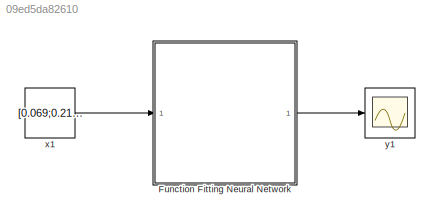
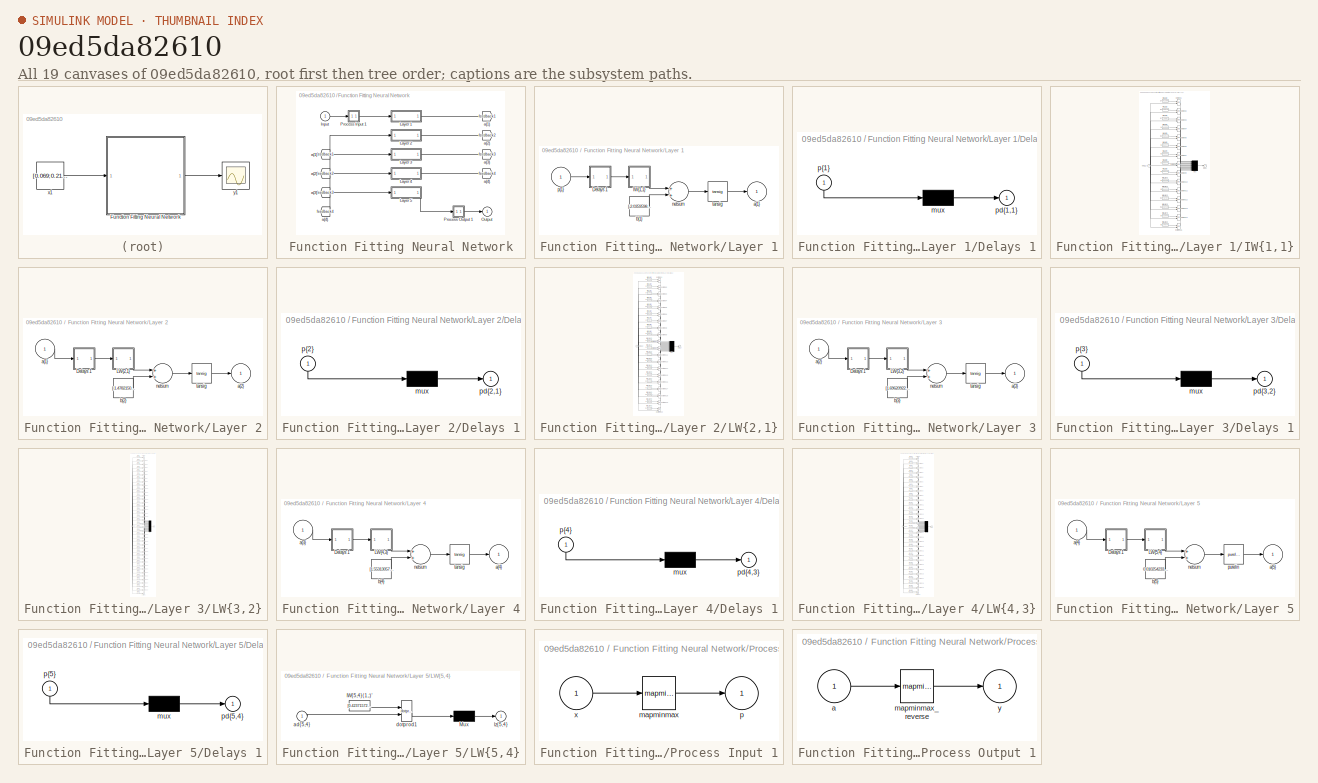
[diagram: thumbnail index - all 19 canvases of the model, root first then tree order]
MODEL slx_09ed5da82610
KIND model
CONFIG AbsTol = auto
CONFIG EnableMultiTasking = off
CONFIG FixedStep = auto
CONFIG MaxStep = auto
CONFIG MinStep = auto
CONFIG RelTol = 1e-3
CONFIG SampleTimeConstraint = Unconstrained
CONFIG Solver = VariableStepAuto
CONFIG SolverName = VariableStepAuto
CONFIG StartTime = 0.0
CONFIG StopTime = 10.0
BLOCK [SubSystem] Function Fitting Neural Network
  Ports = [1, 1]
  RequestExecContextInheritance = off
BLOCK [From] Function Fitting Neural Network/ a{1} 
  GotoTag = feedback1
BLOCK [From] Function Fitting Neural Network/ a{2} 
  GotoTag = feedback2
BLOCK [From] Function Fitting Neural Network/ a{3} 
  GotoTag = feedback3
BLOCK [From] Function Fitting Neural Network/ a{4} 
  GotoTag = feedback4
BLOCK [Inport] Function Fitting Neural Network/Input
  IconDisplay = Port number
  PortDimensions = 7
BLOCK [SubSystem] Function Fitting Neural Network/Layer 1
  Ports = [1, 1]
  RequestExecContextInheritance = off
BLOCK [SubSystem] Function Fitting Neural Network/Layer 1/Delays 1
  Ports = [1, 1]
  RequestExecContextInheritance = off
BLOCK [Mux] Function Fitting Neural Network/Layer 1/Delays 1/mux
  Inputs = 1
  Ports = [1, 1]
BLOCK [Outport] Function Fitting Neural Network/Layer 1/Delays 1/pd{1,1}
  IconDisplay = Port number
BLOCK [Inport] Function Fitting Neural Network/Layer 1/Delays 1/p{1}
  IconDisplay = Port number
  PortDimensions = 7
BLOCK [SubSystem] Function Fitting Neural Network/Layer 1/IW{1,1}
  Ports = [1, 1]
  RequestExecContextInheritance = off
BLOCK [Constant] Function Fitting Neural Network/Layer 1/IW{1,1}/IW{1,1}(1,:)'
  Value = [1.4461385580733026046118538943119347095489501953125;-0.335255664635375094650981964150560088455677032470703125;1.1386118223521146664012348992400802671909332275390625;-0.34969028980183380905799594984273426234722137451171875;-0.5011796797988286034097882293281145393848419189453125;-0.79235355062516055202337383889243938028812408447265625;-0.39115373332394398619982212039758451282978057861328125]
BLOCK [Constant] Function Fitting Neural Network/Layer 1/IW{1,1}/IW{1,1}(10,:)'
  Value = [-1.4632338448456911894623999614850617945194244384765625;0.258672480305769780795088763625244610011577606201171875;0.99604298909952582175009183629299513995647430419921875;-0.865406142829387992065903745242394506931304931640625;0.59307459126189099318793296333751641213893890380859375;-0.442847863515674344814243568180245347321033477783203125;0.272887788161705724387928739815833978354930877685546875]
BLOCK [Constant] Function Fitting Neural Network/Layer 1/IW{1,1}/IW{1,1}(11,:)'
  Value = [-0.56940315928496698649752261189860291779041290283203125;-0.18374275545045015700651447332347743213176727294921875;0.78820290917684820986011118293390609323978424072265625;0.09647703363445227220385191913010203279554843902587890625;0.91729897128442361431410745353787206113338470458984375;-0.8765760751568250075393962106318213045597076416015625;0.2041856811890372103146518156790989451110363006591796875]
BLOCK [Constant] Function Fitting Neural Network/Layer 1/IW{1,1}/IW{1,1}(12,:)'
  Value = [0.34787976182425717208701598792686127126216888427734375;0.03262287695201369908115651696789427660405635833740234375;-1.55154119701481096882389465463347733020782470703125;0.80596754321466301806964338538818992674350738525390625;-0.2765748607632525501998088657273910939693450927734375;0.76078346580782751917837458677240647375583648681640625;-0.14450832483306197406847104502958245575428009033203125]
BLOCK [Constant] Function Fitting Neural Network/Layer 1/IW{1,1}/IW{1,1}(13,:)'
  Value = [0.60084098113757600234663414084934629499912261962890625;-0.0271305133193306124983479321599588729441165924072265625;-0.61312794774631385052998666651546955108642578125;0.74110245218716774839862182489014230668544769287109375;1.1589929172468387275074519493500702083110809326171875;1.198995466622418515356685020378790795803070068359375;0.49443662462725368467175712794414721429347991943359375]
BLOCK [Constant] Function Fitting Neural Network/Layer 1/IW{1,1}/IW{1,1}(14,:)'
  Value = [-0.402960688267683553309694843846955336630344390869140625;0.7897897830643507699477368078078143298625946044921875;0.58199353987828572609686261785100214183330535888671875;-0.2390968135625904100738381430346635170280933380126953125;-1.5806744854650827125652767790597863495349884033203125;-0.29883004333024187904044310926110483705997467041015625;0.57015102300553544001360251058940775692462921142578125]
BLOCK [Constant] Function Fitting Neural Network/Layer 1/IW{1,1}/IW{1,1}(15,:)'
  Value = [-0.91480751120884240545905186081654392182826995849609375;-0.80882619856300219662870176762226037681102752685546875;-0.9273161322985057353207594132982194423675537109375;-0.797147938765003782890516959014348685741424560546875;0.289919280189700645511408083621063269674777984619140625;0.435933236747247654374604053373332135379314422607421875;1.0407756470266760207010747762979008257389068603515625]
BLOCK [Constant] Function Fitting Neural Network/Layer 1/IW{1,1}/IW{1,1}(2,:)'
  Value = [2.25486181401047591776887202286161482334136962890625;0.014182854401464585480940883144285180605947971343994140625;-0.12216706136416040362480117664745193906128406524658203125;-0.89160270036879041288813141363789327442646026611328125;1.3346195013887498515003926513600163161754608154296875;-0.311483345853431625727125720004551112651824951171875;-0.74559354571627434182801152928732335567474365234375]
BLOCK [Constant] Function Fitting Neural Network/Layer 1/IW{1,1}/IW{1,1}(3,:)'
  Value = [0.7176987168618678136766675379476509988307952880859375;0.3301741059867031591323893735534511506557464599609375;-2.3763096100939744559354949160479009151458740234375;-0.12034719146775359199796895381950889714062213897705078125;0.93120453428968252840292052496806718409061431884765625;-0.1567418523163192911606955703973653726279735565185546875;0.67008114029065513062022318990784697234630584716796875]
BLOCK [Constant] Function Fitting Neural Network/Layer 1/IW{1,1}/IW{1,1}(4,:)'
  Value = [-1.418355637278355896313541961717419326305389404296875;1.1254836952548534778628663843846879899501800537109375;-0.2360785110637110550957373789060511626303195953369140625;0.270180642285818117809270688667311333119869232177734375;-0.91852511231972544525348212118842639029026031494140625;0.53385242642337027429988438598229549825191497802734375;-0.1625308739894006648807334158846060745418071746826171875]
BLOCK [Constant] Function Fitting Neural Network/Layer 1/IW{1,1}/IW{1,1}(5,:)'
  Value = [0.349691394649472242495136242723674513399600982666015625;-1.7929999460099363961518292853725142776966094970703125;0.380912170260698290658041287315427325665950775146484375;-0.6955501285940943745345066417939960956573486328125;0.13518474690951631789204157030326314270496368408203125;-0.73601070850391725475247994836536236107349395751953125;0.36754050027079399054485975284478627145290374755859375]
BLOCK [Constant] Function Fitting Neural Network/Layer 1/IW{1,1}/IW{1,1}(6,:)'
  Value = [-1.3962070819415861588908001067466102540493011474609375;-0.401928430513534939994002570529119111597537994384765625;-2.164755546319458101578447895008139312267303466796875;-0.7973005710747920193881554951076395809650421142578125;-0.6464988204286215012217553521622903645038604736328125;-0.65331920093039419494829189716256223618984222412109375;0.93907826358256141219271739828400313854217529296875]
BLOCK [Constant] Function Fitting Neural Network/Layer 1/IW{1,1}/IW{1,1}(7,:)'
  Value = [-0.34809003070294119996930248817079700529575347900390625;-0.663222903383746231753548272536136209964752197265625;0.970054131580154521685699364752508699893951416015625;-0.2048090527316841491511922868085093796253204345703125;0.65753710964151956819279121191357262432575225830078125;0.5964888776809031956105400240630842745304107666015625;1.2958366628046367186044562913593836128711700439453125]
BLOCK [Constant] Function Fitting Neural Network/Layer 1/IW{1,1}/IW{1,1}(8,:)'
  Value = [-1.7565040192401537577637782305828295648097991943359375;0.257274480026488117090366358752362430095672607421875;2.182447803911671702081775947590358555316925048828125;-0.183252327943159321055333066396997310221195220947265625;1.0324275367962429950097202890901826322078704833984375;-1.527336463127231258596339102950878441333770751953125;-0.027075809883386169063523851718855439685285091400146484375]
BLOCK [Constant] Function Fitting Neural Network/Layer 1/IW{1,1}/IW{1,1}(9,:)'
  Value = [-1.240973346398818843994149574427865445613861083984375;-0.62891714125219777553610356335411779582500457763671875;-0.266291322616500902853431398398242890834808349609375;0.97454886489340541988468658018973655998706817626953125;-0.5623360557478604970782498639891855418682098388671875;1.335479144088913994181666566873900592327117919921875;0.92038629670233318424976687310845591127872467041015625]
BLOCK [Mux] Function Fitting Neural Network/Layer 1/IW{1,1}/Mux
  Inputs = 15
  Ports = [15, 1]
BLOCK [Reference] Function Fitting Neural Network/Layer 1/IW{1,1}/dotprod1  REF=neural/Weight Functions/dotprod
  Ports = [2, 1]
  SourceBlock = neural/Weight Functions/dotprod
  SourceProductBaseCode = NN
  SourceProductName = Neural Network Toolbox
  SourceType = DOTPROD
BLOCK [Reference] Function Fitting Neural Network/Layer 1/IW{1,1}/dotprod10  REF=neural/Weight Functions/dotprod
  Ports = [2, 1]
  SourceBlock = neural/Weight Functions/dotprod
  SourceProductBaseCode = NN
  SourceProductName = Neural Network Toolbox
  SourceType = DOTPROD
BLOCK [Reference] Function Fitting Neural Network/Layer 1/IW{1,1}/dotprod11  REF=neural/Weight Functions/dotprod
  Ports = [2, 1]
  SourceBlock = neural/Weight Functions/dotprod
  SourceProductBaseCode = NN
  SourceProductName = Neural Network Toolbox
  SourceType = DOTPROD
BLOCK [Reference] Function Fitting Neural Network/Layer 1/IW{1,1}/dotprod12  REF=neural/Weight Functions/dotprod
  Ports = [2, 1]
  SourceBlock = neural/Weight Functions/dotprod
  SourceProductBaseCode = NN
  SourceProductName = Neural Network Toolbox
  SourceType = DOTPROD
BLOCK [Reference] Function Fitting Neural Network/Layer 1/IW{1,1}/dotprod13  REF=neural/Weight Functions/dotprod
  Ports = [2, 1]
  SourceBlock = neural/Weight Functions/dotprod
  SourceProductBaseCode = NN
  SourceProductName = Neural Network Toolbox
  SourceType = DOTPROD
BLOCK [Reference] Function Fitting Neural Network/Layer 1/IW{1,1}/dotprod14  REF=neural/Weight Functions/dotprod
  Ports = [2, 1]
  SourceBlock = neural/Weight Functions/dotprod
  SourceProductBaseCode = NN
  SourceProductName = Neural Network Toolbox
  SourceType = DOTPROD
BLOCK [Reference] Function Fitting Neural Network/Layer 1/IW{1,1}/dotprod15  REF=neural/Weight Functions/dotprod
  Ports = [2, 1]
  SourceBlock = neural/Weight Functions/dotprod
  SourceProductBaseCode = NN
  SourceProductName = Neural Network Toolbox
  SourceType = DOTPROD
BLOCK [Reference] Function Fitting Neural Network/Layer 1/IW{1,1}/dotprod2  REF=neural/Weight Functions/dotprod
  Ports = [2, 1]
  SourceBlock = neural/Weight Functions/dotprod
  SourceProductBaseCode = NN
  SourceProductName = Neural Network Toolbox
  SourceType = DOTPROD
BLOCK [Reference] Function Fitting Neural Network/Layer 1/IW{1,1}/dotprod3  REF=neural/Weight Functions/dotprod
  Ports = [2, 1]
  SourceBlock = neural/Weight Functions/dotprod
  SourceProductBaseCode = NN
  SourceProductName = Neural Network Toolbox
  SourceType = DOTPROD
BLOCK [Reference] Function Fitting Neural Network/Layer 1/IW{1,1}/dotprod4  REF=neural/Weight Functions/dotprod
  Ports = [2, 1]
  SourceBlock = neural/Weight Functions/dotprod
  SourceProductBaseCode = NN
  SourceProductName = Neural Network Toolbox
  SourceType = DOTPROD
BLOCK [Reference] Function Fitting Neural Network/Layer 1/IW{1,1}/dotprod5  REF=neural/Weight Functions/dotprod
  Ports = [2, 1]
  SourceBlock = neural/Weight Functions/dotprod
  SourceProductBaseCode = NN
  SourceProductName = Neural Network Toolbox
  SourceType = DOTPROD
BLOCK [Reference] Function Fitting Neural Network/Layer 1/IW{1,1}/dotprod6  REF=neural/Weight Functions/dotprod
  Ports = [2, 1]
  SourceBlock = neural/Weight Functions/dotprod
  SourceProductBaseCode = NN
  SourceProductName = Neural Network Toolbox
  SourceType = DOTPROD
BLOCK [Reference] Function Fitting Neural Network/Layer 1/IW{1,1}/dotprod7  REF=neural/Weight Functions/dotprod
  Ports = [2, 1]
  SourceBlock = neural/Weight Functions/dotprod
  SourceProductBaseCode = NN
  SourceProductName = Neural Network Toolbox
  SourceType = DOTPROD
BLOCK [Reference] Function Fitting Neural Network/Layer 1/IW{1,1}/dotprod8  REF=neural/Weight Functions/dotprod
  Ports = [2, 1]
  SourceBlock = neural/Weight Functions/dotprod
  SourceProductBaseCode = NN
  SourceProductName = Neural Network Toolbox
  SourceType = DOTPROD
BLOCK [Reference] Function Fitting Neural Network/Layer 1/IW{1,1}/dotprod9  REF=neural/Weight Functions/dotprod
  Ports = [2, 1]
  SourceBlock = neural/Weight Functions/dotprod
  SourceProductBaseCode = NN
  SourceProductName = Neural Network Toolbox
  SourceType = DOTPROD
BLOCK [Outport] Function Fitting Neural Network/Layer 1/IW{1,1}/iz{1,1}
  IconDisplay = Port number
BLOCK [Inport] Function Fitting Neural Network/Layer 1/IW{1,1}/pd{1,1}
  IconDisplay = Port number
  PortDimensions = 7
BLOCK [Outport] Function Fitting Neural Network/Layer 1/a{1}
  IconDisplay = Port number
  InitialOutput = [0;0;0;0;0;0;0;0;0;0;0;0;0;0;0]
BLOCK [Constant] Function Fitting Neural Network/Layer 1/b{1}
  Value = [-2.0359598157981366739477380178868770599365234375;2.016567836372491040464183242875151336193084716796875;-1.580029945803789193092825371422804892063140869140625;0.91302425576334800272348957150825299322605133056640625;0.8216157270648862809281354202539660036563873291015625;-0.471307852996874554474260321512701921164989471435546875;-0.17381603170163606453257898465381003916263580322265625;-0.03731823313...<+432ch>
BLOCK [Sum] Function Fitting Neural Network/Layer 1/netsum
  Inputs = 2
  Ports = [2, 1]
BLOCK [Inport] Function Fitting Neural Network/Layer 1/p{1}
  IconDisplay = Port number
  PortDimensions = 7
BLOCK [Reference] Function Fitting Neural Network/Layer 1/tansig  REF=neural/Transfer Functions/tansig
  Ports = [1, 1]
  SourceBlock = neural/Transfer Functions/tansig
  SourceProductBaseCode = NN
  SourceProductName = Neural Network Toolbox
  SourceType = TANSIG
BLOCK [SubSystem] Function Fitting Neural Network/Layer 2
  Ports = [1, 1]
  RequestExecContextInheritance = off
BLOCK [SubSystem] Function Fitting Neural Network/Layer 2/Delays 1
  Ports = [1, 1]
  RequestExecContextInheritance = off
BLOCK [Mux] Function Fitting Neural Network/Layer 2/Delays 1/mux
  Inputs = 1
  Ports = [1, 1]
BLOCK [Outport] Function Fitting Neural Network/Layer 2/Delays 1/pd{2,1}
  IconDisplay = Port number
BLOCK [Inport] Function Fitting Neural Network/Layer 2/Delays 1/p{2}
  IconDisplay = Port number
  PortDimensions = 15
BLOCK [SubSystem] Function Fitting Neural Network/Layer 2/LW{2,1}
  Ports = [1, 1]
  RequestExecContextInheritance = off
BLOCK [Constant] Function Fitting Neural Network/Layer 2/LW{2,1}/IW{2,1}(1,:)'
  Value = [-0.0171791313299649479884312341937402379699051380157470703125;1.583189747525735047162243063212372362613677978515625;-1.5998711949727193459835916655720211565494537353515625;0.12061723776503618932309791489387862384319305419921875;-0.5725003243643260741890799181419424712657928466796875;-0.357935104095241707344854376060538925230503082275390625;0.154397674003320162228192202746868133544921875;1.1114366...<+438ch>
BLOCK [Constant] Function Fitting Neural Network/Layer 2/LW{2,1}/IW{2,1}(10,:)'
  Value = [-0.4608875272509898035622200040961615741252899169921875;0.68460199563357926333395653273328207433223724365234375;-0.376630815706861910019398465010453946888446807861328125;0.487851337055022538091719752628705464303493499755859375;-0.444845223882175566654240128627861849963665008544921875;0.59439102111026087538192541614989750087261199951171875;0.2195227473316520849788702207661117427051067352294921875;...<+451ch>
BLOCK [Constant] Function Fitting Neural Network/Layer 2/LW{2,1}/IW{2,1}(11,:)'
  Value = [-0.01497117505286977255651859053386942832730710506439208984375;0.25163505494207905055503715630038641393184661865234375;-0.80313798181190432234899390095961280167102813720703125;-0.5166741927631386399610846638097427785396575927734375;-0.68431741409055035774144926108419895172119140625;0.7753046990259466753059314214624464511871337890625;0.16581173209533706103258055009064264595508575439453125;0.383284...<+445ch>
BLOCK [Constant] Function Fitting Neural Network/Layer 2/LW{2,1}/IW{2,1}(12,:)'
  Value = [0.036284049551918280684947859526801039464771747589111328125;-1.173930582333475580725234976853244006633758544921875;-0.33855929003647700081813809447339735925197601318359375;0.64917033800202539328694228970562107861042022705078125;0.5731995026045648700119272689335048198699951171875;-1.327429510617611274625460282550193369388580322265625;-0.52256739301029597744019383753766305744647979736328125;-0.0158...<+452ch>
BLOCK [Constant] Function Fitting Neural Network/Layer 2/LW{2,1}/IW{2,1}(13,:)'
  Value = [-0.77619579703755625654792993373121134936809539794921875;0.08859846007814496660071057476670830510556697845458984375;0.61249127841265960103811494263936765491962432861328125;-0.69157764706548141564468323849723674356937408447265625;0.39904046831370754144785450989729724824428558349609375;-0.622259772988354331602067759376950562000274658203125;0.293113409099478749997302884366945363581180572509765625;-1...<+448ch>
BLOCK [Constant] Function Fitting Neural Network/Layer 2/LW{2,1}/IW{2,1}(14,:)'
  Value = [0.84985289183015588765357506417785771191120147705078125;-0.098855441364344986965306816273368895053863525390625;0.468373022436139707647129171164124272763729095458984375;-0.5681242578691427791426349358516745269298553466796875;-0.41623359849339680582858136403956450521945953369140625;0.284607312518066868367583310828194953501224517822265625;0.432228091530829139355063261973555199801921844482421875;0.00...<+459ch>
BLOCK [Constant] Function Fitting Neural Network/Layer 2/LW{2,1}/IW{2,1}(15,:)'
  Value = [-1.1754066396534106342386394317145459353923797607421875;-1.437560447391590390253668374498374760150909423828125;-2.019410177118745597368842936703003942966461181640625;0.38206439047662055230603073141537606716156005859375;-0.659690878920167644849925636663101613521575927734375;0.154583581663067459732729957977426238358020782470703125;0.71732902119448294087078465963713824748992919921875;2.2903410462512...<+439ch>
BLOCK [Constant] Function Fitting Neural Network/Layer 2/LW{2,1}/IW{2,1}(16,:)'
  Value = [0.37649235792179769344301121236640028655529022216796875;0.0410956925027627650859329833110678009688854217529296875;-0.1674550072650037579879978011376806534826755523681640625;-0.59333606500303048836286734513123519718647003173828125;-0.1805674880714942809323275696442578919231891632080078125;0.43602327186565148497976451835711486637592315673828125;0.557526436382298928862155662500299513339996337890625;...<+450ch>
BLOCK [Constant] Function Fitting Neural Network/Layer 2/LW{2,1}/IW{2,1}(17,:)'
  Value = [-0.32776921948015458330161209232755936682224273681640625;0.146315485131840061772123817718238569796085357666015625;0.56509814961606175121033857067232020199298858642578125;-0.2488474548585326295846442690162803046405315399169921875;-0.281504630708862724208785266455379314720630645751953125;-0.36523759414306378179304601871990598738193511962890625;-0.1725711600478302965022692205820931121706962585449218...<+457ch>
BLOCK [Constant] Function Fitting Neural Network/Layer 2/LW{2,1}/IW{2,1}(18,:)'
  Value = [0.9166857226991875773336460042628459632396697998046875;-0.51779967865787301928293118180590681731700897216796875;-0.2119242457503061338730532270346884615719318389892578125;-0.088535211961837223526572415721602737903594970703125;-0.044525861643638066367234529252527863718569278717041015625;-0.287429458258048053931332788124564103782176971435546875;0.1897991841702045545670074488953105174005031585693359...<+460ch>
BLOCK [Constant] Function Fitting Neural Network/Layer 2/LW{2,1}/IW{2,1}(19,:)'
  Value = [-0.766118222607552024072674612398259341716766357421875;-1.96964383528427600111854189890436828136444091796875;0.4272857146504975833778416927088983356952667236328125;-0.550531706783287777540181195945478975772857666015625;-0.572089277182947331112927713547833263874053955078125;-0.26716323231763416945483413655892945826053619384765625;-0.13341111385491988272633534506894648075103759765625;-0.09694485011...<+449ch>
BLOCK [Constant] Function Fitting Neural Network/Layer 2/LW{2,1}/IW{2,1}(2,:)'
  Value = [-0.378414635588106673669273050109040923416614532470703125;-0.53404515631833593403143822797574102878570556640625;0.4951875224470512204533179101417772471904754638671875;-0.50850532082811417122769626075751148164272308349609375;0.206567868404627985601251793923438526690006256103515625;0.09573486644448027382825472386684850789606571197509765625;0.050105819374800387999702167007853859104216098785400390625...<+450ch>
BLOCK [Constant] Function Fitting Neural Network/Layer 2/LW{2,1}/IW{2,1}(20,:)'
  Value = [0.1294445857705942837245771670495742000639438629150390625;0.162434958156465025780335054150782525539398193359375;0.245960365806652259124120973865501582622528076171875;0.427564273447674059180911854127771221101284027099609375;0.55703258088401985670401472816593013703823089599609375;-0.3155870624872749719003195423283614218235015869140625;-0.36716965686000724300441788727766834199428558349609375;0.22423...<+438ch>
BLOCK [Constant] Function Fitting Neural Network/Layer 2/LW{2,1}/IW{2,1}(3,:)'
  Value = [-0.44156884580382482763383222845732234418392181396484375;0.4467913332402309034563359091407619416713714599609375;-1.1416875326908861865149447112344205379486083984375;0.483710632372314208726749029665370471775531768798828125;0.453376639641767165134211836630129255354404449462890625;-0.55220681849157327025778840834391303360462188720703125;0.6124779472685657477626364197931252419948577880859375;0.865719...<+449ch>
BLOCK [Constant] Function Fitting Neural Network/Layer 2/LW{2,1}/IW{2,1}(4,:)'
  Value = [-0.41732820650106006166168981508235447108745574951171875;0.61158153171280582593993813134147785604000091552734375;-0.33869232395132586876940194997587241232395172119140625;0.09201940525250261460055156703674583695828914642333984375;-0.6584669412044714675857903785072267055511474609375;-0.2051972361209143669302790158326388336718082427978515625;-0.0437336626385066706834692240590811707079410552978515625...<+451ch>
BLOCK [Constant] Function Fitting Neural Network/Layer 2/LW{2,1}/IW{2,1}(5,:)'
  Value = [0.58139850513733748460509787037153728306293487548828125;0.147003409985475952392874887664220295846462249755859375;-0.48324412286146556372301574810990132391452789306640625;0.27699119730860422006202270495123229920864105224609375;0.306005218196699402266602874078671447932720184326171875;0.1114344007570864381051478630979545414447784423828125;0.180173477359261091645947772121871821582317352294921875;-0.4...<+444ch>
BLOCK [Constant] Function Fitting Neural Network/Layer 2/LW{2,1}/IW{2,1}(6,:)'
  Value = [-0.5337183014223503274564563980675302445888519287109375;0.47211188421364891354414794477634131908416748046875;0.54504004536615691112189097111695446074008941650390625;0.059696310382000759842124892884385189972817897796630859375;-0.61645076944005572361362510491744615137577056884765625;-0.5432087639575293724902849135105498135089874267578125;0.0787873741352640433177612067083828151226043701171875;0.1779...<+445ch>
BLOCK [Constant] Function Fitting Neural Network/Layer 2/LW{2,1}/IW{2,1}(7,:)'
  Value = [-0.387917238738084313443010842092917300760746002197265625;0.408455198570797317625391542605939321219921112060546875;-0.8092016641674024679531385118025355041027069091796875;0.0280477581377869648882050768179396982304751873016357421875;0.453028842582675839167904996429570019245147705078125;-0.8275874707009760467002479344955645501613616943359375;0.40122053094943144202488838345743715763092041015625;-0.2...<+447ch>
BLOCK [Constant] Function Fitting Neural Network/Layer 2/LW{2,1}/IW{2,1}(8,:)'
  Value = [-0.406610809681680951399584955652244389057159423828125;0.259665634327100491862694298106362111866474151611328125;-0.3902136369118285319501637786743231117725372314453125;0.70438542717460272957197275900398381054401397705078125;-0.235150042202869891116989720103447325527667999267578125;0.0221117774791641484577464638050514622591435909271240234375;0.31370528909155981356349229827173985540866851806640625;...<+452ch>
BLOCK [Constant] Function Fitting Neural Network/Layer 2/LW{2,1}/IW{2,1}(9,:)'
  Value = [-0.67885178472827956142054972588084638118743896484375;0.1513014623812467818186888734999229200184345245361328125;0.622444542899012187575635834946297109127044677734375;-0.290695711127777312032804957198095507919788360595703125;-0.0290967222806129723056134395164917805232107639312744140625;-0.84115827578698298960802048895857296884059906005859375;-0.57428823237337833784721397023531608283519744873046875...<+443ch>
BLOCK [Mux] Function Fitting Neural Network/Layer 2/LW{2,1}/Mux
  Inputs = 20
  Ports = [20, 1]
BLOCK [Inport] Function Fitting Neural Network/Layer 2/LW{2,1}/ad{2,1}
  IconDisplay = Port number
  PortDimensions = 15
BLOCK [Reference] Function Fitting Neural Network/Layer 2/LW{2,1}/dotprod1  REF=neural/Weight Functions/dotprod
  Ports = [2, 1]
  SourceBlock = neural/Weight Functions/dotprod
  SourceProductBaseCode = NN
  SourceProductName = Neural Network Toolbox
  SourceType = DOTPROD
BLOCK [Reference] Function Fitting Neural Network/Layer 2/LW{2,1}/dotprod10  REF=neural/Weight Functions/dotprod
  Ports = [2, 1]
  SourceBlock = neural/Weight Functions/dotprod
  SourceProductBaseCode = NN
  SourceProductName = Neural Network Toolbox
  SourceType = DOTPROD
BLOCK [Reference] Function Fitting Neural Network/Layer 2/LW{2,1}/dotprod11  REF=neural/Weight Functions/dotprod
  Ports = [2, 1]
  SourceBlock = neural/Weight Functions/dotprod
  SourceProductBaseCode = NN
  SourceProductName = Neural Network Toolbox
  SourceType = DOTPROD
BLOCK [Reference] Function Fitting Neural Network/Layer 2/LW{2,1}/dotprod12  REF=neural/Weight Functions/dotprod
  Ports = [2, 1]
  SourceBlock = neural/Weight Functions/dotprod
  SourceProductBaseCode = NN
  SourceProductName = Neural Network Toolbox
  SourceType = DOTPROD
BLOCK [Reference] Function Fitting Neural Network/Layer 2/LW{2,1}/dotprod13  REF=neural/Weight Functions/dotprod
  Ports = [2, 1]
  SourceBlock = neural/Weight Functions/dotprod
  SourceProductBaseCode = NN
  SourceProductName = Neural Network Toolbox
  SourceType = DOTPROD
BLOCK [Reference] Function Fitting Neural Network/Layer 2/LW{2,1}/dotprod14  REF=neural/Weight Functions/dotprod
  Ports = [2, 1]
  SourceBlock = neural/Weight Functions/dotprod
  SourceProductBaseCode = NN
  SourceProductName = Neural Network Toolbox
  SourceType = DOTPROD
BLOCK [Reference] Function Fitting Neural Network/Layer 2/LW{2,1}/dotprod15  REF=neural/Weight Functions/dotprod
  Ports = [2, 1]
  SourceBlock = neural/Weight Functions/dotprod
  SourceProductBaseCode = NN
  SourceProductName = Neural Network Toolbox
  SourceType = DOTPROD
BLOCK [Reference] Function Fitting Neural Network/Layer 2/LW{2,1}/dotprod16  REF=neural/Weight Functions/dotprod
  Ports = [2, 1]
  SourceBlock = neural/Weight Functions/dotprod
  SourceProductBaseCode = NN
  SourceProductName = Neural Network Toolbox
  SourceType = DOTPROD
BLOCK [Reference] Function Fitting Neural Network/Layer 2/LW{2,1}/dotprod17  REF=neural/Weight Functions/dotprod
  Ports = [2, 1]
  SourceBlock = neural/Weight Functions/dotprod
  SourceProductBaseCode = NN
  SourceProductName = Neural Network Toolbox
  SourceType = DOTPROD
BLOCK [Reference] Function Fitting Neural Network/Layer 2/LW{2,1}/dotprod18  REF=neural/Weight Functions/dotprod
  Ports = [2, 1]
  SourceBlock = neural/Weight Functions/dotprod
  SourceProductBaseCode = NN
  SourceProductName = Neural Network Toolbox
  SourceType = DOTPROD
BLOCK [Reference] Function Fitting Neural Network/Layer 2/LW{2,1}/dotprod19  REF=neural/Weight Functions/dotprod
  Ports = [2, 1]
  SourceBlock = neural/Weight Functions/dotprod
  SourceProductBaseCode = NN
  SourceProductName = Neural Network Toolbox
  SourceType = DOTPROD
BLOCK [Reference] Function Fitting Neural Network/Layer 2/LW{2,1}/dotprod2  REF=neural/Weight Functions/dotprod
  Ports = [2, 1]
  SourceBlock = neural/Weight Functions/dotprod
  SourceProductBaseCode = NN
  SourceProductName = Neural Network Toolbox
  SourceType = DOTPROD
BLOCK [Reference] Function Fitting Neural Network/Layer 2/LW{2,1}/dotprod20  REF=neural/Weight Functions/dotprod
  Ports = [2, 1]
  SourceBlock = neural/Weight Functions/dotprod
  SourceProductBaseCode = NN
  SourceProductName = Neural Network Toolbox
  SourceType = DOTPROD
BLOCK [Reference] Function Fitting Neural Network/Layer 2/LW{2,1}/dotprod3  REF=neural/Weight Functions/dotprod
  Ports = [2, 1]
  SourceBlock = neural/Weight Functions/dotprod
  SourceProductBaseCode = NN
  SourceProductName = Neural Network Toolbox
  SourceType = DOTPROD
BLOCK [Reference] Function Fitting Neural Network/Layer 2/LW{2,1}/dotprod4  REF=neural/Weight Functions/dotprod
  Ports = [2, 1]
  SourceBlock = neural/Weight Functions/dotprod
  SourceProductBaseCode = NN
  SourceProductName = Neural Network Toolbox
  SourceType = DOTPROD
BLOCK [Reference] Function Fitting Neural Network/Layer 2/LW{2,1}/dotprod5  REF=neural/Weight Functions/dotprod
  Ports = [2, 1]
  SourceBlock = neural/Weight Functions/dotprod
  SourceProductBaseCode = NN
  SourceProductName = Neural Network Toolbox
  SourceType = DOTPROD
BLOCK [Reference] Function Fitting Neural Network/Layer 2/LW{2,1}/dotprod6  REF=neural/Weight Functions/dotprod
  Ports = [2, 1]
  SourceBlock = neural/Weight Functions/dotprod
  SourceProductBaseCode = NN
  SourceProductName = Neural Network Toolbox
  SourceType = DOTPROD
BLOCK [Reference] Function Fitting Neural Network/Layer 2/LW{2,1}/dotprod7  REF=neural/Weight Functions/dotprod
  Ports = [2, 1]
  SourceBlock = neural/Weight Functions/dotprod
  SourceProductBaseCode = NN
  SourceProductName = Neural Network Toolbox
  SourceType = DOTPROD
BLOCK [Reference] Function Fitting Neural Network/Layer 2/LW{2,1}/dotprod8  REF=neural/Weight Functions/dotprod
  Ports = [2, 1]
  SourceBlock = neural/Weight Functions/dotprod
  SourceProductBaseCode = NN
  SourceProductName = Neural Network Toolbox
  SourceType = DOTPROD
BLOCK [Reference] Function Fitting Neural Network/Layer 2/LW{2,1}/dotprod9  REF=neural/Weight Functions/dotprod
  Ports = [2, 1]
  SourceBlock = neural/Weight Functions/dotprod
  SourceProductBaseCode = NN
  SourceProductName = Neural Network Toolbox
  SourceType = DOTPROD
BLOCK [Outport] Function Fitting Neural Network/Layer 2/LW{2,1}/lz{2,1}
  IconDisplay = Port number
BLOCK [Inport] Function Fitting Neural Network/Layer 2/a{1} 
  IconDisplay = Port number
  PortDimensions = 15
BLOCK [Outport] Function Fitting Neural Network/Layer 2/a{2}
  IconDisplay = Port number
  InitialOutput = [0;0;0;0;0;0;0;0;0;0;0;0;0;0;0;0;0;0;0;0]
BLOCK [Constant] Function Fitting Neural Network/Layer 2/b{2}
  Value = [-1.478215058256096892108644169638864696025848388671875;1.5627879728514970647523796287714503705501556396484375;1.4353724469919251216509792357101105153560638427734375;1.163363037948693001766287125064991414546966552734375;-1.192703231332309155021675906027667224407196044921875;0.80248307109537553305500523492810316383838653564453125;0.458619923555811659365843979685450904071331024169921875;0.5530717531...<+710ch>
BLOCK [Sum] Function Fitting Neural Network/Layer 2/netsum
  Inputs = 2
  Ports = [2, 1]
BLOCK [Reference] Function Fitting Neural Network/Layer 2/tansig  REF=neural/Transfer Functions/tansig
  Ports = [1, 1]
  SourceBlock = neural/Transfer Functions/tansig
  SourceProductBaseCode = NN
  SourceProductName = Neural Network Toolbox
  SourceType = TANSIG
BLOCK [SubSystem] Function Fitting Neural Network/Layer 3
  Ports = [1, 1]
  RequestExecContextInheritance = off
BLOCK [SubSystem] Function Fitting Neural Network/Layer 3/Delays 1
  Ports = [1, 1]
  RequestExecContextInheritance = off
BLOCK [Mux] Function Fitting Neural Network/Layer 3/Delays 1/mux
  Inputs = 1
  Ports = [1, 1]
BLOCK [Outport] Function Fitting Neural Network/Layer 3/Delays 1/pd{3,2}
  IconDisplay = Port number
BLOCK [Inport] Function Fitting Neural Network/Layer 3/Delays 1/p{3}
  IconDisplay = Port number
  PortDimensions = 20
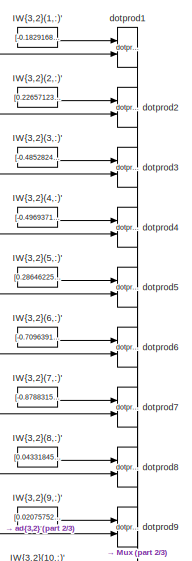
[diagram: Function Fitting Neural Network/Layer 3/LW{3,2} - part 1/3, top center region]
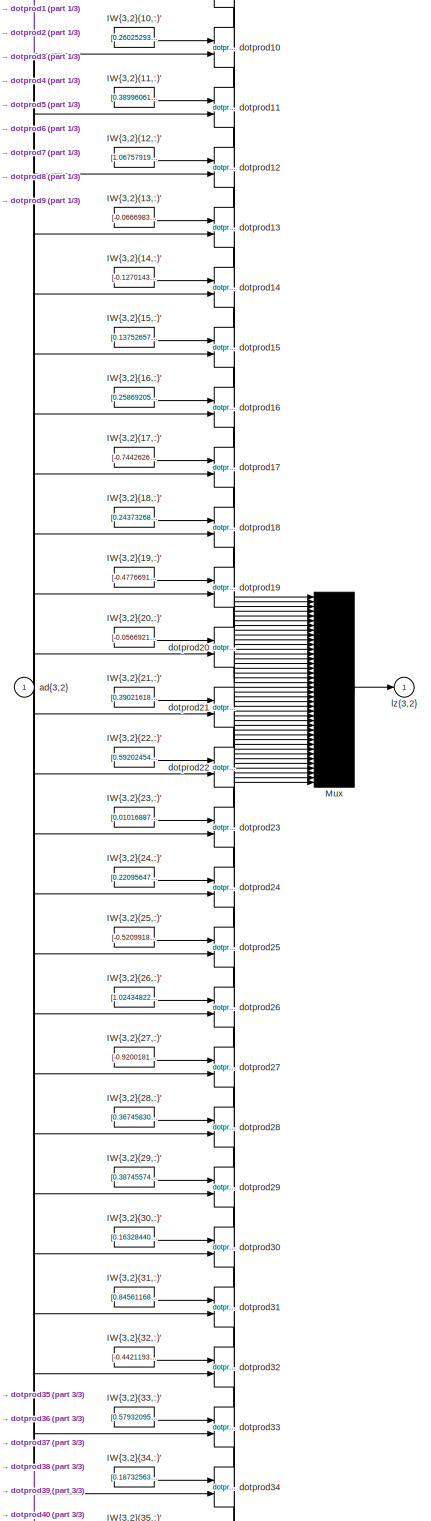
[diagram: Function Fitting Neural Network/Layer 3/LW{3,2} - part 2/3, full width, middle band]
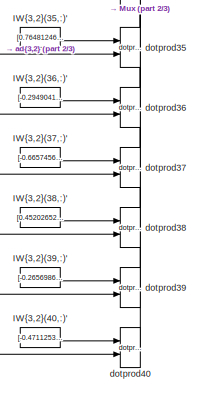
[diagram: Function Fitting Neural Network/Layer 3/LW{3,2} - part 3/3, bottom center region]
BLOCK [SubSystem] Function Fitting Neural Network/Layer 3/LW{3,2}
  Ports = [1, 1]
  RequestExecContextInheritance = off
BLOCK [Constant] Function Fitting Neural Network/Layer 3/LW{3,2}/IW{3,2}(1,:)'
  Value = [-0.1829168085103247409772819764839368872344493865966796875;-0.0309194791006970649827056973890648805536329746246337890625;-0.473445421608748417963141719155828468501567840576171875;-0.5191600833466301079255345030105672776699066162109375;0.1451798803369302170995780443263356573879718780517578125;0.59159280224889709831614936774712987244129180908203125;-0.32127217860912055114042118475481402128934860229...<+754ch>
BLOCK [Constant] Function Fitting Neural Network/Layer 3/LW{3,2}/IW{3,2}(10,:)'
  Value = [0.26025293521393688678244870970956981182098388671875;0.3162912305284877323430237083812244236469268798828125;0.79101052955626871554528634078451432287693023681640625;0.3752475121799763169150310204713605344295501708984375;-0.086531026247048281607732178599690087139606475830078125;-0.08910141439094777793261670240099192596971988677978515625;-0.6080152874416515640376701412606053054332733154296875;-0.085...<+714ch>
BLOCK [Constant] Function Fitting Neural Network/Layer 3/LW{3,2}/IW{3,2}(11,:)'
  Value = [0.38996061684321059459534808411262929439544677734375;-0.481285960494954478949836129686445929110050201416015625;0.1306196417469000226052600055481889285147190093994140625;0.2198483040742788274801711168038309551775455474853515625;0.2759810168374083882980585258337669074535369873046875;-0.249641630044311224612130217792582698166370391845703125;0.2039609808614492314493560343180433847010135650634765625;-...<+744ch>
BLOCK [Constant] Function Fitting Neural Network/Layer 3/LW{3,2}/IW{3,2}(12,:)'
  Value = [1.067579196158828569451770817977376282215118408203125;-0.22598213053048521459231778862886130809783935546875;1.094763380293611643168105729273520410060882568359375;0.1755610012903481564894292432654765434563159942626953125;-0.57170640443452669376966923664440400898456573486328125;-0.469245896285013397442043014962109737098217010498046875;-0.187547971552334047373733483254909515380859375;-0.566535941372...<+737ch>
BLOCK [Constant] Function Fitting Neural Network/Layer 3/LW{3,2}/IW{3,2}(13,:)'
  Value = [-0.066698321541217409080815059496671892702579498291015625;-0.3940197317696363388250802017864771187305450439453125;0.0858031853978040437436192178211058489978313446044921875;0.21733458156605056643684292794205248355865478515625;-0.39162885675627634451956282646278850734233856201171875;0.329718147792623705871761785601847805082798004150390625;-0.5447504954636579466153989415033720433712005615234375;-0.0...<+737ch>
BLOCK [Constant] Function Fitting Neural Network/Layer 3/LW{3,2}/IW{3,2}(14,:)'
  Value = [-0.1270143968757194985474967552363523282110691070556640625;-0.292497456977112657572348553003394044935703277587890625;0.68210545728311233748542008470394648611545562744140625;0.52508350061855357804319055503583513200283050537109375;0.179257030816315110488545769840129651129245758056640625;0.441027304017710564121301786144613288342952728271484375;0.147313440998818878657772302176454104483127593994140625...<+738ch>
BLOCK [Constant] Function Fitting Neural Network/Layer 3/LW{3,2}/IW{3,2}(15,:)'
  Value = [0.1375265783797686436340512727838358841836452484130859375;-0.252170802444732000680005512549541890621185302734375;-0.51882886945607420425830014210077933967113494873046875;-0.6895732025604328629952988194418139755725860595703125;0.23831022420331293698581021089921705424785614013671875;0.1357599808028106258550593565814779140055179595947265625;-0.63772225974751572952214928591274656355381011962890625;0....<+737ch>
BLOCK [Constant] Function Fitting Neural Network/Layer 3/LW{3,2}/IW{3,2}(16,:)'
  Value = [0.258692053534977095541336211681482382118701934814453125;0.5558913626877666214198825400671921670436859130859375;-0.638621968007691886981547213508747518062591552734375;-0.1316786887344168766045271468101418577134609222412109375;-0.2141989472506613256808094547523069195449352264404296875;0.083823235190610800859900564319104887545108795166015625;0.34733015948042689213792755253962241113185882568359375;0...<+742ch>
BLOCK [Constant] Function Fitting Neural Network/Layer 3/LW{3,2}/IW{3,2}(17,:)'
  Value = [-0.74426265100310440292474822854273952543735504150390625;-0.70087913511094790397493170530651696026325225830078125;0.4666023768139486715966768315411172807216644287109375;-0.1501228827000206378361468750881613232195377349853515625;0.320038263848955673029905710791354067623615264892578125;-0.57550205081460370504231605082168243825435638427734375;-0.029395113300903462361102214117636322043836116790771484...<+746ch>
BLOCK [Constant] Function Fitting Neural Network/Layer 3/LW{3,2}/IW{3,2}(18,:)'
  Value = [0.243732687714312279414485828965553082525730133056640625;-0.65774255940225090366624272064655087888240814208984375;-0.400658670868387523089637625162140466272830963134765625;-0.48633111020455610518098410466336645185947418212890625;0.66514625172456620649796832367428578436374664306640625;-0.49313342808908477987728247171617113053798675537109375;0.68868045537267830180638839010498486459255218505859375;-...<+757ch>
BLOCK [Constant] Function Fitting Neural Network/Layer 3/LW{3,2}/IW{3,2}(19,:)'
  Value = [-0.4776691329492741555640122896875254809856414794921875;-0.44352074745438507807904215951566584408283233642578125;-0.452743245280889994308637369613279588520526885986328125;-0.2470401026469322136591699745622463524341583251953125;0.2475812742562850388150508251783321611583232879638671875;0.056641486228477345987730728893438936211168766021728515625;-0.677003090820415875938920180487912148237228393554687...<+743ch>
BLOCK [Constant] Function Fitting Neural Network/Layer 3/LW{3,2}/IW{3,2}(2,:)'
  Value = [0.2265712305102531021194778304561623372137546539306640625;0.07338937416824999060427359154346049763262271881103515625;0.33282359922401150154058768748654983937740325927734375;0.3249731416717132059801542709465138614177703857421875;-0.316695541620328702148157162810093723237514495849609375;-0.1165335337716103258909328133086091838777065277099609375;0.2879899297476501418557859324209857732057571411132812...<+740ch>
BLOCK [Constant] Function Fitting Neural Network/Layer 3/LW{3,2}/IW{3,2}(20,:)'
  Value = [-0.056692178209886139039763719438269617967307567596435546875;-0.47616891304632058545820427752914838492870330810546875;0.5098093416700650859496590783237479627132415771484375;0.50087968142276917404842606629244983196258544921875;-0.167880686301000559002005729780648835003376007080078125;-0.15930765438628224917039233332616277039051055908203125;0.03685417505785643782489913178324059117585420608520507812...<+737ch>
BLOCK [Constant] Function Fitting Neural Network/Layer 3/LW{3,2}/IW{3,2}(21,:)'
  Value = [0.39021618381707678935299554723314940929412841796875;0.039328901889228683186328083820626488886773586273193359375;-0.46523011243823397808938580055837519466876983642578125;0.458031163665575835608478882932104170322418212890625;-0.1792523822253256071679317074085702188313007354736328125;-0.497838212466338692063771986795472912490367889404296875;-0.73908344195907937912437546401633881032466888427734375;-...<+759ch>
BLOCK [Constant] Function Fitting Neural Network/Layer 3/LW{3,2}/IW{3,2}(22,:)'
  Value = [0.59202454432800200034847648566938005387783050537109375;0.47440333175997417836100567001267336308956146240234375;-0.29032932095300900687817602374707348644733428955078125;0.1140299164334089010441886102853459306061267852783203125;-0.281114208622402272919060806088964454829692840576171875;0.55785277125062904257646323458175174891948699951171875;0.6369615099958281234648893587291240692138671875;0.1369878...<+733ch>
BLOCK [Constant] Function Fitting Neural Network/Layer 3/LW{3,2}/IW{3,2}(23,:)'
  Value = [0.0101688722876137165040955068207040312699973583221435546875;-0.118793920688449350375748281294363550841808319091796875;0.396706796647168957736795391610939987003803253173828125;-0.47700137418111088205563419251120649278163909912109375;0.369062563800884924081202598244999535381793975830078125;0.49954435437085020765834997291676700115203857421875;-0.3619992158802893822411306246067397296428680419921875;...<+740ch>
BLOCK [Constant] Function Fitting Neural Network/Layer 3/LW{3,2}/IW{3,2}(24,:)'
  Value = [0.2209564717053489613096672883330029435455799102783203125;-0.711275938811448238396906162961386144161224365234375;-0.71393144104783379244594243573374114930629730224609375;-0.408897022020746792048129236718523316085338592529296875;-0.2486320757336937248282993095926940441131591796875;0.0829055357235750356448278353127534501254558563232421875;-0.60148721537773786049996260771877132356166839599609375;0.1...<+742ch>
BLOCK [Constant] Function Fitting Neural Network/Layer 3/LW{3,2}/IW{3,2}(25,:)'
  Value = [-0.5209918733041354332868877463624812662601470947265625;-0.11326844897058920003107829188593314029276371002197265625;0.441449437012278400604969874621019698679447174072265625;0.287299214417040982283424455090425908565521240234375;0.5100799347435749364620960477623157203197479248046875;-0.07349146558507803350668297071024426259100437164306640625;0.0715420668430618994504399665856908541172742843627929687...<+752ch>
BLOCK [Constant] Function Fitting Neural Network/Layer 3/LW{3,2}/IW{3,2}(26,:)'
  Value = [1.0243482272304811342422681263997219502925872802734375;0.292312168756087176202385080614476464688777923583984375;0.60631405862105436366249477941892109811305999755859375;0.4538719015373577914118641274399124085903167724609375;0.041186738070715649129294178010241012088954448699951171875;-0.60898322975964169767593148208106867969036102294921875;-0.5728906067346615227364736711024306714534759521484375;-0....<+737ch>
BLOCK [Constant] Function Fitting Neural Network/Layer 3/LW{3,2}/IW{3,2}(27,:)'
  Value = [-0.92001816521248536151489361145650036633014678955078125;-0.437623543924546887229354297232930548489093780517578125;0.2437940367618545156602749557350762188434600830078125;0.1917993378686410343991752824877039529383182525634765625;-0.192671822769902523209140099424985237419605255126953125;-0.580700816140372833018545861705206334590911865234375;0.33842156601358086565056737526901997625827789306640625;0....<+736ch>
BLOCK [Constant] Function Fitting Neural Network/Layer 3/LW{3,2}/IW{3,2}(28,:)'
  Value = [0.367458309364585955503201830651960335671901702880859375;-0.33112696395083551781368669253424741327762603759765625;-0.173393424093952586151345940379542298614978790283203125;0.434895294612187566229977164766751229763031005859375;-0.57850729760631847131691074537229724228382110595703125;-0.323663730074190858498894840522552840411663055419921875;-0.259663646832847871959160102051100693643093109130859375;...<+735ch>
BLOCK [Constant] Function Fitting Neural Network/Layer 3/LW{3,2}/IW{3,2}(29,:)'
  Value = [0.3874557483097207377653603543876670300960540771484375;-0.5300498288843524807845142277074046432971954345703125;-0.0952662466636684801546408607464400120079517364501953125;0.0049067375057265071036649572988608269952237606048583984375;0.56115980787726738032716866655391640961170196533203125;-0.61509278386164323304541312609217129647731781005859375;-0.2295746509043926353310638432958512566983699798583984...<+748ch>
BLOCK [Constant] Function Fitting Neural Network/Layer 3/LW{3,2}/IW{3,2}(3,:)'
  Value = [-0.485282454346925240518118016552762128412723541259765625;-0.58006808402243492661654045150498859584331512451171875;-0.736880910098351105119718340574763715267181396484375;0.281282795278998742904974506018334068357944488525390625;-0.372408581899070834086984405075781978666782379150390625;0.2105876913731135058327481601736508309841156005859375;-0.03950240936659480533998944906670658383518457412719726562...<+746ch>
BLOCK [Constant] Function Fitting Neural Network/Layer 3/LW{3,2}/IW{3,2}(30,:)'
  Value = [0.1632844046694001127750794921666965819895267486572265625;-0.40144786552652844680011412492603994905948638916015625;-0.4636935515509714722526268815272487699985504150390625;0.24735424953183560159430953717674128711223602294921875;0.6389652882055514293568876382778398692607879638671875;0.0983232455090264634289809464462450705468654632568359375;0.1866978849786840033431190022383816540241241455078125;-0.5...<+739ch>
BLOCK [Constant] Function Fitting Neural Network/Layer 3/LW{3,2}/IW{3,2}(31,:)'
  Value = [0.84561168979350365138003553511225618422031402587890625;0.2266897706142397550532763261799118481576442718505859375;0.336089435356619059547256256337277591228485107421875;0.313201822795482420769275222482974641025066375732421875;0.665017755979655067477551710908301174640655517578125;-0.46113947100768781783841632204712368547916412353515625;0.1712695112488551441032313960022293031215667724609375;-0.05240...<+745ch>
BLOCK [Constant] Function Fitting Neural Network/Layer 3/LW{3,2}/IW{3,2}(32,:)'
  Value = [-0.442119331533713910697969140528584830462932586669921875;-0.361758174631772677631857959568151272833347320556640625;-0.59309806559371391898594083613716065883636474609375;-0.7066943345919975971725079944008029997348785400390625;-0.1450242221914848084196592026273719966411590576171875;0.239893651674967067766175432552699930965900421142578125;-0.364502919294735050481648386266897432506084442138671875;-0...<+730ch>
BLOCK [Constant] Function Fitting Neural Network/Layer 3/LW{3,2}/IW{3,2}(33,:)'
  Value = [0.57932095756739576675187208820716477930545806884765625;-0.17386783798390303967806858054245822131633758544921875;0.293361311271036540038181783529580570757389068603515625;-0.396235128890822296821028203339665196835994720458984375;-0.2246849903649298096919295630868873558938503265380859375;-0.415773145529762577776722309863544069230556488037109375;-0.013853958596348572504530771709596592700108885765075...<+745ch>
BLOCK [Constant] Function Fitting Neural Network/Layer 3/LW{3,2}/IW{3,2}(34,:)'
  Value = [0.187325638571518349184685803265892900526523590087890625;0.1862544492136719853636606103464146144688129425048828125;-0.40419065216929350725649783271364867687225341796875;-0.1709886476668188437511020083547919057309627532958984375;-0.306625259878764711007903542849817313253879547119140625;0.0024203287399946174680842592152885117684490978717803955078125;0.27476008839747290135591129001113586127758026123...<+748ch>
BLOCK [Constant] Function Fitting Neural Network/Layer 3/LW{3,2}/IW{3,2}(35,:)'
  Value = [0.7648124685704298375554799349629320204257965087890625;-0.256306148381633736033080595007049851119518280029296875;-0.33523863035802481391556284506805241107940673828125;-0.1131143307498589656301390959924901835620403289794921875;-0.1737165297500867511271138710071681998670101165771484375;-0.2253222209909185036469381202550721354782581329345703125;-0.6594629077821430040984296283568255603313446044921875...<+739ch>
BLOCK [Constant] Function Fitting Neural Network/Layer 3/LW{3,2}/IW{3,2}(36,:)'
  Value = [-0.294904135746857587463409799966029822826385498046875;0.0389759648983930284682486444580717943608760833740234375;0.448665602438276855945531451652641408145427703857421875;-0.64901210628586991635557978952419944107532501220703125;-0.418286605619572482428480952876270748674869537353515625;0.315024792805747022583773286896757781505584716796875;-0.48838917344514864993243463686667382717132568359375;0.2136...<+737ch>
BLOCK [Constant] Function Fitting Neural Network/Layer 3/LW{3,2}/IW{3,2}(37,:)'
  Value = [-0.66574562456547814459639766937470994889736175537109375;-0.139813359662722513920840583523386158049106597900390625;-0.411567963823821381108558625783189199864864349365234375;-0.053159640216062953310682814844767563045024871826171875;-0.546370302690265763345678351470269262790679931640625;0.54572136319201380860732797373202629387378692626953125;-0.198492949666876222769573701043555047363042831420898437...<+745ch>
BLOCK [Constant] Function Fitting Neural Network/Layer 3/LW{3,2}/IW{3,2}(38,:)'
  Value = [0.452026527902734953645591531312675215303897857666015625;0.295796825690542164455365536923636682331562042236328125;-0.572452362938835168648665785440243780612945556640625;-0.407288520127098430112511096012894995510578155517578125;0.463374324548233518239470640764920972287654876708984375;-0.2469884332689227524060271434791502542793750762939453125;0.255524007074077186274507766938768327236175537109375;-0...<+739ch>
BLOCK [Constant] Function Fitting Neural Network/Layer 3/LW{3,2}/IW{3,2}(39,:)'
  Value = [-0.265698697395677474464292799893883056938648223876953125;-0.505151299554641664002474499284289777278900146484375;0.3354518375847479472184886617469601333141326904296875;-0.127290645439890492962575763158383779227733612060546875;0.420106310598848231574464762161369435489177703857421875;-0.1562865499101834532158505908228107728064060211181640625;-0.077345834606296029467564778769883560016751289367675781...<+748ch>
BLOCK [Constant] Function Fitting Neural Network/Layer 3/LW{3,2}/IW{3,2}(4,:)'
  Value = [-0.4969371025661002416740075204870663583278656005859375;-0.445562020725487284433796730809262953698635101318359375;-0.473391851703347354973772098674089647829532623291015625;0.52380836875663916440970524490694515407085418701171875;-0.255127007572922670508575038184062577784061431884765625;0.483305585462697473442261753007187508046627044677734375;-0.2733649591689306657116276255692355334758758544921875;...<+739ch>
BLOCK [Constant] Function Fitting Neural Network/Layer 3/LW{3,2}/IW{3,2}(40,:)'
  Value = [-0.4711253112584110613880739037995226681232452392578125;0.46050917817728398429011349435313604772090911865234375;0.08168082188223156625550558374015963636338710784912109375;-0.281641139945747520645369377234601415693759918212890625;0.0184437917141396061360136826579037006013095378875732421875;0.486525664723506057196544816179084591567516326904296875;0.48833242241668617378280714547145180404186248779296...<+742ch>
BLOCK [Constant] Function Fitting Neural Network/Layer 3/LW{3,2}/IW{3,2}(5,:)'
  Value = [0.2864622512365706530346187719260342419147491455078125;0.379430322403826625343725709171849302947521209716796875;-0.04207734525164753824899577239193604327738285064697265625;0.18657827944948690568338633966050110757350921630859375;-0.34483029064620651649164528862456791102886199951171875;0.06937178937931250122250759204689529724419116973876953125;-0.1308375215312047867843858739433926530182361602783203...<+745ch>
BLOCK [Constant] Function Fitting Neural Network/Layer 3/LW{3,2}/IW{3,2}(6,:)'
  Value = [-0.70963917031809342628179138046107254922389984130859375;-0.5286155220777664087705716156051494181156158447265625;-0.430109070218807676422301256025093607604503631591796875;-0.380979697071441136824176965092192403972148895263671875;-0.67582693208144173357965200921171344816684722900390625;0.1592921139482164905043504177228896878659725189208984375;-0.6047824998258130024808565394778270274400711059570312...<+740ch>
BLOCK [Constant] Function Fitting Neural Network/Layer 3/LW{3,2}/IW{3,2}(7,:)'
  Value = [-0.87883150394934717031247828344930894672870635986328125;-0.278246724826220648285612924155429936945438385009765625;-0.301947257892786480315550079467357136309146881103515625;-0.26381647471151647987852584265056066215038299560546875;-0.21319105102531354933859120137640275061130523681640625;0.214102362094244103030149517508107237517833709716796875;0.42959597397494897474956587757333181798458099365234375...<+727ch>
BLOCK [Constant] Function Fitting Neural Network/Layer 3/LW{3,2}/IW{3,2}(8,:)'
  Value = [0.04331845754258532854574781367773539386689662933349609375;-0.293932290520794226029721585291554220020771026611328125;-0.445991607281519042427220256286091171205043792724609375;0.07086818352430375445027976866185781545937061309814453125;-0.18208005111320002544772478358936496078968048095703125;0.411333561872894548638868172929505817592144012451171875;-0.200975725602853982909579144688905216753482818603...<+743ch>
BLOCK [Constant] Function Fitting Neural Network/Layer 3/LW{3,2}/IW{3,2}(9,:)'
  Value = [0.02075752227895456825113029708518297411501407623291015625;0.73644419266876315344205750079709105193614959716796875;-0.829839808253479471744640250108204782009124755859375;-0.353484893355686058402653770826873369514942169189453125;0.6428176948212922514613865132560022175312042236328125;0.302579690654498190127696943818591535091400146484375;0.59564597611148528688573833278496749699115753173828125;0.3158...<+738ch>
BLOCK [Mux] Function Fitting Neural Network/Layer 3/LW{3,2}/Mux
  Inputs = 40
  Ports = [40, 1]
BLOCK [Inport] Function Fitting Neural Network/Layer 3/LW{3,2}/ad{3,2}
  IconDisplay = Port number
  PortDimensions = 20
BLOCK [Reference] Function Fitting Neural Network/Layer 3/LW{3,2}/dotprod1  REF=neural/Weight Functions/dotprod
  Ports = [2, 1]
  SourceBlock = neural/Weight Functions/dotprod
  SourceProductBaseCode = NN
  SourceProductName = Neural Network Toolbox
  SourceType = DOTPROD
BLOCK [Reference] Function Fitting Neural Network/Layer 3/LW{3,2}/dotprod10  REF=neural/Weight Functions/dotprod
  Ports = [2, 1]
  SourceBlock = neural/Weight Functions/dotprod
  SourceProductBaseCode = NN
  SourceProductName = Neural Network Toolbox
  SourceType = DOTPROD
BLOCK [Reference] Function Fitting Neural Network/Layer 3/LW{3,2}/dotprod11  REF=neural/Weight Functions/dotprod
  Ports = [2, 1]
  SourceBlock = neural/Weight Functions/dotprod
  SourceProductBaseCode = NN
  SourceProductName = Neural Network Toolbox
  SourceType = DOTPROD
BLOCK [Reference] Function Fitting Neural Network/Layer 3/LW{3,2}/dotprod12  REF=neural/Weight Functions/dotprod
  Ports = [2, 1]
  SourceBlock = neural/Weight Functions/dotprod
  SourceProductBaseCode = NN
  SourceProductName = Neural Network Toolbox
  SourceType = DOTPROD
BLOCK [Reference] Function Fitting Neural Network/Layer 3/LW{3,2}/dotprod13  REF=neural/Weight Functions/dotprod
  Ports = [2, 1]
  SourceBlock = neural/Weight Functions/dotprod
  SourceProductBaseCode = NN
  SourceProductName = Neural Network Toolbox
  SourceType = DOTPROD
BLOCK [Reference] Function Fitting Neural Network/Layer 3/LW{3,2}/dotprod14  REF=neural/Weight Functions/dotprod
  Ports = [2, 1]
  SourceBlock = neural/Weight Functions/dotprod
  SourceProductBaseCode = NN
  SourceProductName = Neural Network Toolbox
  SourceType = DOTPROD
BLOCK [Reference] Function Fitting Neural Network/Layer 3/LW{3,2}/dotprod15  REF=neural/Weight Functions/dotprod
  Ports = [2, 1]
  SourceBlock = neural/Weight Functions/dotprod
  SourceProductBaseCode = NN
  SourceProductName = Neural Network Toolbox
  SourceType = DOTPROD
BLOCK [Reference] Function Fitting Neural Network/Layer 3/LW{3,2}/dotprod16  REF=neural/Weight Functions/dotprod
  Ports = [2, 1]
  SourceBlock = neural/Weight Functions/dotprod
  SourceProductBaseCode = NN
  SourceProductName = Neural Network Toolbox
  SourceType = DOTPROD
BLOCK [Reference] Function Fitting Neural Network/Layer 3/LW{3,2}/dotprod17  REF=neural/Weight Functions/dotprod
  Ports = [2, 1]
  SourceBlock = neural/Weight Functions/dotprod
  SourceProductBaseCode = NN
  SourceProductName = Neural Network Toolbox
  SourceType = DOTPROD
BLOCK [Reference] Function Fitting Neural Network/Layer 3/LW{3,2}/dotprod18  REF=neural/Weight Functions/dotprod
  Ports = [2, 1]
  SourceBlock = neural/Weight Functions/dotprod
  SourceProductBaseCode = NN
  SourceProductName = Neural Network Toolbox
  SourceType = DOTPROD
BLOCK [Reference] Function Fitting Neural Network/Layer 3/LW{3,2}/dotprod19  REF=neural/Weight Functions/dotprod
  Ports = [2, 1]
  SourceBlock = neural/Weight Functions/dotprod
  SourceProductBaseCode = NN
  SourceProductName = Neural Network Toolbox
  SourceType = DOTPROD
BLOCK [Reference] Function Fitting Neural Network/Layer 3/LW{3,2}/dotprod2  REF=neural/Weight Functions/dotprod
  Ports = [2, 1]
  SourceBlock = neural/Weight Functions/dotprod
  SourceProductBaseCode = NN
  SourceProductName = Neural Network Toolbox
  SourceType = DOTPROD
BLOCK [Reference] Function Fitting Neural Network/Layer 3/LW{3,2}/dotprod20  REF=neural/Weight Functions/dotprod
  Ports = [2, 1]
  SourceBlock = neural/Weight Functions/dotprod
  SourceProductBaseCode = NN
  SourceProductName = Neural Network Toolbox
  SourceType = DOTPROD
BLOCK [Reference] Function Fitting Neural Network/Layer 3/LW{3,2}/dotprod21  REF=neural/Weight Functions/dotprod
  Ports = [2, 1]
  SourceBlock = neural/Weight Functions/dotprod
  SourceProductBaseCode = NN
  SourceProductName = Neural Network Toolbox
  SourceType = DOTPROD
BLOCK [Reference] Function Fitting Neural Network/Layer 3/LW{3,2}/dotprod22  REF=neural/Weight Functions/dotprod
  Ports = [2, 1]
  SourceBlock = neural/Weight Functions/dotprod
  SourceProductBaseCode = NN
  SourceProductName = Neural Network Toolbox
  SourceType = DOTPROD
BLOCK [Reference] Function Fitting Neural Network/Layer 3/LW{3,2}/dotprod23  REF=neural/Weight Functions/dotprod
  Ports = [2, 1]
  SourceBlock = neural/Weight Functions/dotprod
  SourceProductBaseCode = NN
  SourceProductName = Neural Network Toolbox
  SourceType = DOTPROD
BLOCK [Reference] Function Fitting Neural Network/Layer 3/LW{3,2}/dotprod24  REF=neural/Weight Functions/dotprod
  Ports = [2, 1]
  SourceBlock = neural/Weight Functions/dotprod
  SourceProductBaseCode = NN
  SourceProductName = Neural Network Toolbox
  SourceType = DOTPROD
BLOCK [Reference] Function Fitting Neural Network/Layer 3/LW{3,2}/dotprod25  REF=neural/Weight Functions/dotprod
  Ports = [2, 1]
  SourceBlock = neural/Weight Functions/dotprod
  SourceProductBaseCode = NN
  SourceProductName = Neural Network Toolbox
  SourceType = DOTPROD
BLOCK [Reference] Function Fitting Neural Network/Layer 3/LW{3,2}/dotprod26  REF=neural/Weight Functions/dotprod
  Ports = [2, 1]
  SourceBlock = neural/Weight Functions/dotprod
  SourceProductBaseCode = NN
  SourceProductName = Neural Network Toolbox
  SourceType = DOTPROD
BLOCK [Reference] Function Fitting Neural Network/Layer 3/LW{3,2}/dotprod27  REF=neural/Weight Functions/dotprod
  Ports = [2, 1]
  SourceBlock = neural/Weight Functions/dotprod
  SourceProductBaseCode = NN
  SourceProductName = Neural Network Toolbox
  SourceType = DOTPROD
BLOCK [Reference] Function Fitting Neural Network/Layer 3/LW{3,2}/dotprod28  REF=neural/Weight Functions/dotprod
  Ports = [2, 1]
  SourceBlock = neural/Weight Functions/dotprod
  SourceProductBaseCode = NN
  SourceProductName = Neural Network Toolbox
  SourceType = DOTPROD
BLOCK [Reference] Function Fitting Neural Network/Layer 3/LW{3,2}/dotprod29  REF=neural/Weight Functions/dotprod
  Ports = [2, 1]
  SourceBlock = neural/Weight Functions/dotprod
  SourceProductBaseCode = NN
  SourceProductName = Neural Network Toolbox
  SourceType = DOTPROD
BLOCK [Reference] Function Fitting Neural Network/Layer 3/LW{3,2}/dotprod3  REF=neural/Weight Functions/dotprod
  Ports = [2, 1]
  SourceBlock = neural/Weight Functions/dotprod
  SourceProductBaseCode = NN
  SourceProductName = Neural Network Toolbox
  SourceType = DOTPROD
BLOCK [Reference] Function Fitting Neural Network/Layer 3/LW{3,2}/dotprod30  REF=neural/Weight Functions/dotprod
  Ports = [2, 1]
  SourceBlock = neural/Weight Functions/dotprod
  SourceProductBaseCode = NN
  SourceProductName = Neural Network Toolbox
  SourceType = DOTPROD
BLOCK [Reference] Function Fitting Neural Network/Layer 3/LW{3,2}/dotprod31  REF=neural/Weight Functions/dotprod
  Ports = [2, 1]
  SourceBlock = neural/Weight Functions/dotprod
  SourceProductBaseCode = NN
  SourceProductName = Neural Network Toolbox
  SourceType = DOTPROD
BLOCK [Reference] Function Fitting Neural Network/Layer 3/LW{3,2}/dotprod32  REF=neural/Weight Functions/dotprod
  Ports = [2, 1]
  SourceBlock = neural/Weight Functions/dotprod
  SourceProductBaseCode = NN
  SourceProductName = Neural Network Toolbox
  SourceType = DOTPROD
BLOCK [Reference] Function Fitting Neural Network/Layer 3/LW{3,2}/dotprod33  REF=neural/Weight Functions/dotprod
  Ports = [2, 1]
  SourceBlock = neural/Weight Functions/dotprod
  SourceProductBaseCode = NN
  SourceProductName = Neural Network Toolbox
  SourceType = DOTPROD
BLOCK [Reference] Function Fitting Neural Network/Layer 3/LW{3,2}/dotprod34  REF=neural/Weight Functions/dotprod
  Ports = [2, 1]
  SourceBlock = neural/Weight Functions/dotprod
  SourceProductBaseCode = NN
  SourceProductName = Neural Network Toolbox
  SourceType = DOTPROD
BLOCK [Reference] Function Fitting Neural Network/Layer 3/LW{3,2}/dotprod35  REF=neural/Weight Functions/dotprod
  Ports = [2, 1]
  SourceBlock = neural/Weight Functions/dotprod
  SourceProductBaseCode = NN
  SourceProductName = Neural Network Toolbox
  SourceType = DOTPROD
BLOCK [Reference] Function Fitting Neural Network/Layer 3/LW{3,2}/dotprod36  REF=neural/Weight Functions/dotprod
  Ports = [2, 1]
  SourceBlock = neural/Weight Functions/dotprod
  SourceProductBaseCode = NN
  SourceProductName = Neural Network Toolbox
  SourceType = DOTPROD
BLOCK [Reference] Function Fitting Neural Network/Layer 3/LW{3,2}/dotprod37  REF=neural/Weight Functions/dotprod
  Ports = [2, 1]
  SourceBlock = neural/Weight Functions/dotprod
  SourceProductBaseCode = NN
  SourceProductName = Neural Network Toolbox
  SourceType = DOTPROD
BLOCK [Reference] Function Fitting Neural Network/Layer 3/LW{3,2}/dotprod38  REF=neural/Weight Functions/dotprod
  Ports = [2, 1]
  SourceBlock = neural/Weight Functions/dotprod
  SourceProductBaseCode = NN
  SourceProductName = Neural Network Toolbox
  SourceType = DOTPROD
BLOCK [Reference] Function Fitting Neural Network/Layer 3/LW{3,2}/dotprod39  REF=neural/Weight Functions/dotprod
  Ports = [2, 1]
  SourceBlock = neural/Weight Functions/dotprod
  SourceProductBaseCode = NN
  SourceProductName = Neural Network Toolbox
  SourceType = DOTPROD
BLOCK [Reference] Function Fitting Neural Network/Layer 3/LW{3,2}/dotprod4  REF=neural/Weight Functions/dotprod
  Ports = [2, 1]
  SourceBlock = neural/Weight Functions/dotprod
  SourceProductBaseCode = NN
  SourceProductName = Neural Network Toolbox
  SourceType = DOTPROD
BLOCK [Reference] Function Fitting Neural Network/Layer 3/LW{3,2}/dotprod40  REF=neural/Weight Functions/dotprod
  Ports = [2, 1]
  SourceBlock = neural/Weight Functions/dotprod
  SourceProductBaseCode = NN
  SourceProductName = Neural Network Toolbox
  SourceType = DOTPROD
BLOCK [Reference] Function Fitting Neural Network/Layer 3/LW{3,2}/dotprod5  REF=neural/Weight Functions/dotprod
  Ports = [2, 1]
  SourceBlock = neural/Weight Functions/dotprod
  SourceProductBaseCode = NN
  SourceProductName = Neural Network Toolbox
  SourceType = DOTPROD
BLOCK [Reference] Function Fitting Neural Network/Layer 3/LW{3,2}/dotprod6  REF=neural/Weight Functions/dotprod
  Ports = [2, 1]
  SourceBlock = neural/Weight Functions/dotprod
  SourceProductBaseCode = NN
  SourceProductName = Neural Network Toolbox
  SourceType = DOTPROD
BLOCK [Reference] Function Fitting Neural Network/Layer 3/LW{3,2}/dotprod7  REF=neural/Weight Functions/dotprod
  Ports = [2, 1]
  SourceBlock = neural/Weight Functions/dotprod
  SourceProductBaseCode = NN
  SourceProductName = Neural Network Toolbox
  SourceType = DOTPROD
BLOCK [Reference] Function Fitting Neural Network/Layer 3/LW{3,2}/dotprod8  REF=neural/Weight Functions/dotprod
  Ports = [2, 1]
  SourceBlock = neural/Weight Functions/dotprod
  SourceProductBaseCode = NN
  SourceProductName = Neural Network Toolbox
  SourceType = DOTPROD
BLOCK [Reference] Function Fitting Neural Network/Layer 3/LW{3,2}/dotprod9  REF=neural/Weight Functions/dotprod
  Ports = [2, 1]
  SourceBlock = neural/Weight Functions/dotprod
  SourceProductBaseCode = NN
  SourceProductName = Neural Network Toolbox
  SourceType = DOTPROD
BLOCK [Outport] Function Fitting Neural Network/Layer 3/LW{3,2}/lz{3,2}
  IconDisplay = Port number
BLOCK [Inport] Function Fitting Neural Network/Layer 3/a{2} 
  IconDisplay = Port number
  PortDimensions = 20
BLOCK [Outport] Function Fitting Neural Network/Layer 3/a{3}
  IconDisplay = Port number
  InitialOutput = [0;0;0;0;0;0;0;0;0;0;0;0;0;0;0;0;0;0;0;0;0;0;0;0;0;0;0;0;0;0;0;0;0;0;0;0;0;0;0;0]
BLOCK [Constant] Function Fitting Neural Network/Layer 3/b{3}
  Value = [1.6962092231682845966389550085295923054218292236328125;-1.6163453150857411966256904634064994752407073974609375;1.464726136576353088258883872185833752155303955078125;1.45186291087109253794551477767527103424072265625;-1.26309845693516109577103634364902973175048828125;1.3137849308884657073548396510886959731578826904296875;1.0935334304906947355817692368873395025730133056640625;-1.10736445411363737534...<+1831ch>
BLOCK [Sum] Function Fitting Neural Network/Layer 3/netsum
  Inputs = 2
  Ports = [2, 1]
BLOCK [Reference] Function Fitting Neural Network/Layer 3/tansig  REF=neural/Transfer Functions/tansig
  Ports = [1, 1]
  SourceBlock = neural/Transfer Functions/tansig
  SourceProductBaseCode = NN
  SourceProductName = Neural Network Toolbox
  SourceType = TANSIG
BLOCK [SubSystem] Function Fitting Neural Network/Layer 4
  Ports = [1, 1]
  RequestExecContextInheritance = off
BLOCK [SubSystem] Function Fitting Neural Network/Layer 4/Delays 1
  Ports = [1, 1]
  RequestExecContextInheritance = off
BLOCK [Mux] Function Fitting Neural Network/Layer 4/Delays 1/mux
  Inputs = 1
  Ports = [1, 1]
BLOCK [Outport] Function Fitting Neural Network/Layer 4/Delays 1/pd{4,3}
  IconDisplay = Port number
BLOCK [Inport] Function Fitting Neural Network/Layer 4/Delays 1/p{4}
  IconDisplay = Port number
  PortDimensions = 40
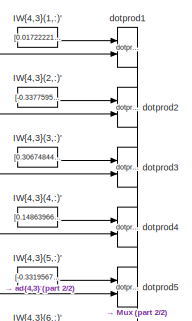
[diagram: Function Fitting Neural Network/Layer 4/LW{4,3} - part 1/2, top center region]
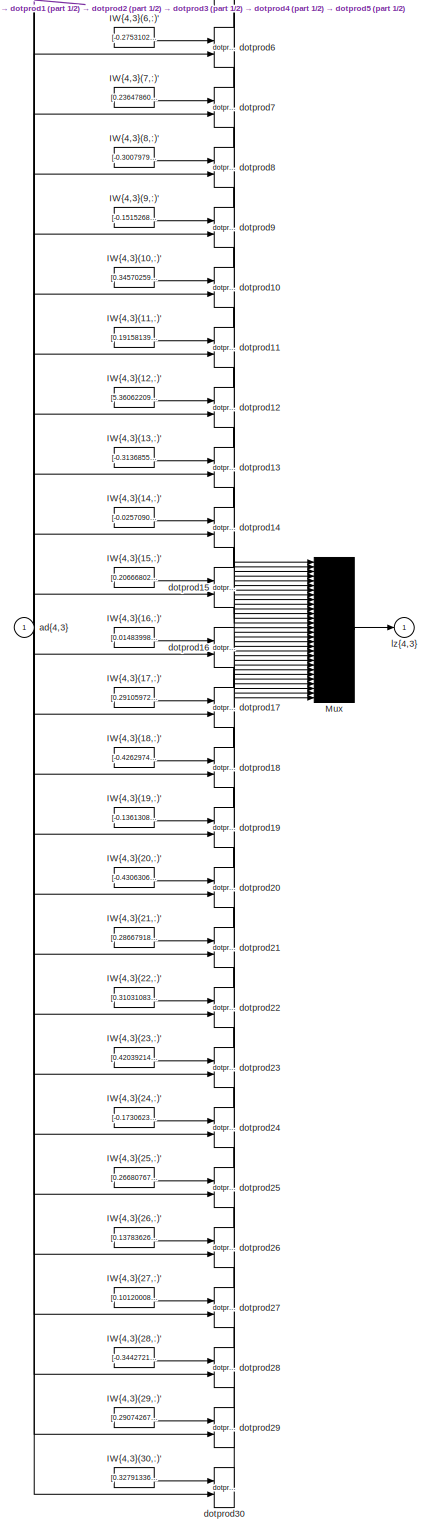
[diagram: Function Fitting Neural Network/Layer 4/LW{4,3} - part 2/2, most of the canvas]
BLOCK [SubSystem] Function Fitting Neural Network/Layer 4/LW{4,3}
  Ports = [1, 1]
  RequestExecContextInheritance = off
BLOCK [Constant] Function Fitting Neural Network/Layer 4/LW{4,3}/IW{4,3}(1,:)'
  Value = [0.01722221321405485727762396663820254616439342498779296875;-0.2243473846008322836187431903454125858843326568603515625;-0.2817027956215112372007070007384754717350006103515625;0.010007555549181666731950457460698089562356472015380859375;-0.052222799872527543574296515771493432112038135528564453125;-0.36771675450739849111414514482021331787109375;-0.19144898833660167758452530506474431604146957397460937...<+1913ch>
BLOCK [Constant] Function Fitting Neural Network/Layer 4/LW{4,3}/IW{4,3}(10,:)'
  Value = [0.34570259655428026146495312787010334432125091552734375;-0.2154519356512423211569284831057302653789520263671875;0.29873698786399927040946522538433782756328582763671875;-0.199077499478858499504241308386554010212421417236328125;-0.370367007570414574768591364772873930633068084716796875;-0.0209832072381205374245194406057635205797851085662841796875;0.107406665930291522759176814361126162111759185791015...<+1928ch>
BLOCK [Constant] Function Fitting Neural Network/Layer 4/LW{4,3}/IW{4,3}(11,:)'
  Value = [0.1915813914859222644171410365743213333189487457275390625;-0.357830809222583645645698879889096133410930633544921875;-0.357401263882600461752048204289167188107967376708984375;-0.177585072364489671148390925736748613417148590087890625;0.334604857873593675154921811554231680929660797119140625;0.35937148790087203309440155862830579280853271484375;-0.306488385602413038188984728549257852137088775634765625...<+1923ch>
BLOCK [Constant] Function Fitting Neural Network/Layer 4/LW{4,3}/IW{4,3}(12,:)'
  Value = [5.36062209917862191217718947910952920210547745227813720703125e-05;-0.11442368818245247930054375729014282114803791046142578125;-0.1557594411861643324268555943490355275571346282958984375;-0.36179244280597921967768115791841410100460052490234375;-0.030818737531659208539469574361646664328873157501220703125;0.1925186147086670185313295178275438956916332244873046875;-0.41688002764061649063620507149607874...<+1917ch>
BLOCK [Constant] Function Fitting Neural Network/Layer 4/LW{4,3}/IW{4,3}(13,:)'
  Value = [-0.313685597700329721337908495115698315203189849853515625;0.1227082387276588748559191799358814023435115814208984375;-0.304670468826331031220178147123078815639019012451171875;0.0960056079777837079181068702382617630064487457275390625;-0.581719749686771425700726467766799032688140869140625;-0.1574184438794015983287266635670675896108150482177734375;0.139232407639655830777769551787059754133224487304687...<+1916ch>
BLOCK [Constant] Function Fitting Neural Network/Layer 4/LW{4,3}/IW{4,3}(14,:)'
  Value = [-0.0257090487926578785404796434477248112671077251434326171875;0.15566282624185368010927277282462455332279205322265625;0.33011672021303761770383289331221021711826324462890625;0.15496772306841111177533321097143925726413726806640625;0.08996642630683580887929196023833355866372585296630859375;0.12271543300732494496951829887620988301932811737060546875;0.1237507295144201074910128568262734916061162948608...<+1902ch>
BLOCK [Constant] Function Fitting Neural Network/Layer 4/LW{4,3}/IW{4,3}(15,:)'
  Value = [0.2066680214308295460146069899565191008150577545166015625;-0.395087383763959409943566924994229339063167572021484375;-0.2350498804801643693007662250238354317843914031982421875;-0.12474408050352404908611703149290406145155429840087890625;-0.57312591859936101723604906510445289313793182373046875;0.055636172328127064812264279680675826966762542724609375;-0.56706703168784622359765990040614269673824310302...<+1895ch>
BLOCK [Constant] Function Fitting Neural Network/Layer 4/LW{4,3}/IW{4,3}(16,:)'
  Value = [0.0148399890455083345586206888810920645482838153839111328125;-0.3501529508998455497703616856597363948822021484375;0.3057988150322639153699810776743106544017791748046875;-0.06712286228281015565411138368290266953408718109130859375;0.43425630794788172561737837895634584128856658935546875;-0.5771420725910119120527497216244228184223175048828125;0.386598081483740418917705028434284031391143798828125;-0.1...<+1897ch>
BLOCK [Constant] Function Fitting Neural Network/Layer 4/LW{4,3}/IW{4,3}(17,:)'
  Value = [0.29105972141441027734032331864000298082828521728515625;0.27955297312863247594094673331710509955883026123046875;0.048903167377171145868697266223534825257956981658935546875;0.155967585018564947052510660796542651951313018798828125;0.131976524357718449920184866641648113727569580078125;-0.311601981515218062757099914961145259439945220947265625;0.336278308962666583337153269894770346581935882568359375;0...<+1899ch>
BLOCK [Constant] Function Fitting Neural Network/Layer 4/LW{4,3}/IW{4,3}(18,:)'
  Value = [-0.426297465391327623507322641671635210514068603515625;0.34386506043942277610625524175702594220638275146484375;-0.1924971985169424415484940027454285882413387298583984375;-0.383017351459806587588019510803860612213611602783203125;0.065420973948113803064785543028847314417362213134765625;-0.2466330731267767639725008166351472027599811553955078125;-0.4326183828292269328841257447493262588977813720703125...<+1921ch>
BLOCK [Constant] Function Fitting Neural Network/Layer 4/LW{4,3}/IW{4,3}(19,:)'
  Value = [-0.1361308123537330050378812984490650705993175506591796875;0.298430469753334703941760608358890749514102935791015625;0.294646284419229520512573117230203934013843536376953125;-0.07041195885243699270628070507882512174546718597412109375;-0.27999013125585270334028109573409892618656158447265625;-0.040320397216798975481566458256565965712070465087890625;0.3940612531802216156329166096838889643549919128417...<+1895ch>
BLOCK [Constant] Function Fitting Neural Network/Layer 4/LW{4,3}/IW{4,3}(2,:)'
  Value = [-0.337759567570749208442748567904345691204071044921875;-0.2990211961879689628318601535283960402011871337890625;-0.0199041689485575414020335216491730534471571445465087890625;0.12295613224858925605076365172863006591796875;0.1944079659731434706060326789156533777713775634765625;0.24038414488640114097250943814287893474102020263671875;0.41784627180958222592010997686884365975856781005859375;-0.068776459...<+1904ch>
BLOCK [Constant] Function Fitting Neural Network/Layer 4/LW{4,3}/IW{4,3}(20,:)'
  Value = [-0.43063065781164955314608278058585710823535919189453125;-0.1850642146541320587349588322467752732336521148681640625;0.086999386547206680742050366461626254022121429443359375;-0.13350060068423508230495144744054414331912994384765625;0.10091590867697437794436865488023613579571247100830078125;0.29489493437687241961242534671328030526638031005859375;0.1322957334848340882338391111261444166302680969238281...<+1880ch>
BLOCK [Constant] Function Fitting Neural Network/Layer 4/LW{4,3}/IW{4,3}(21,:)'
  Value = [0.28667918375999790203678685429622419178485870361328125;0.07409968091761058583966104151841136626899242401123046875;0.248311250687732909536720171672641299664974212646484375;-0.09040288229817373955032877574922167696058750152587890625;0.481977219289923042300216593503137119114398956298828125;0.298302818280698767150482808574452064931392669677734375;-0.15822338275875122426405994247033959254622459411621...<+1906ch>
BLOCK [Constant] Function Fitting Neural Network/Layer 4/LW{4,3}/IW{4,3}(22,:)'
  Value = [0.31031083471411469165701646488741971552371978759765625;0.247855994834180581865012982234475202858448028564453125;0.06806934399424247050802705416572280228137969970703125;-0.0513795055972412484379674424417316913604736328125;-0.299030732446704805571613405845710076391696929931640625;0.287407521808364763149512555173714645206928253173828125;-0.00508891618183252448376352461423266504425555467605590820312...<+1896ch>
BLOCK [Constant] Function Fitting Neural Network/Layer 4/LW{4,3}/IW{4,3}(23,:)'
  Value = [0.420392145762423508070781963397166691720485687255859375;0.1649863847015393403250271830984274856746196746826171875;0.27583464062739093680676205622148700058460235595703125;-0.240227753521153386540021301698288880288600921630859375;0.253519335566080972199642928899265825748443603515625;0.32419975546032120394812636732240207493305206298828125;0.280056674191643539817420105464407242834568023681640625;-0....<+1918ch>
BLOCK [Constant] Function Fitting Neural Network/Layer 4/LW{4,3}/IW{4,3}(24,:)'
  Value = [-0.173062346419707691058675891326856799423694610595703125;-0.1950853705135644211576817497189040295779705047607421875;-0.304015175260980985427750056260265409946441650390625;-0.1689382158949491452570867977556190453469753265380859375;-0.256129337029609605025370910880155861377716064453125;0.3762851870686410027389001697883941233158111572265625;0.397069171087333694369903014376177452504634857177734375;-...<+1895ch>
BLOCK [Constant] Function Fitting Neural Network/Layer 4/LW{4,3}/IW{4,3}(25,:)'
  Value = [0.266807673415450585796548921280191279947757720947265625;-0.0186447374607540510005332379250830854289233684539794921875;0.409208258702677074580833505024202167987823486328125;-0.329296049020056991185612105255131609737873077392578125;0.16718226178567030526522785294218920171260833740234375;-0.401943177630182224557842118883854709565639495849609375;0.2433096936804586551961193663373705931007862091064453...<+1915ch>
BLOCK [Constant] Function Fitting Neural Network/Layer 4/LW{4,3}/IW{4,3}(26,:)'
  Value = [0.1378362685749012772618016242631711065769195556640625;0.2288152019158035954671248646263848058879375457763671875;0.311793892128865712809471233413205482065677642822265625;-0.05133199928963659564029597959233797155320644378662109375;0.08676426181317857533326076691082562319934368133544921875;-0.457582665770896956924929099841392599046230316162109375;-0.4542807070564544580371091342385625466704368591308...<+1888ch>
BLOCK [Constant] Function Fitting Neural Network/Layer 4/LW{4,3}/IW{4,3}(27,:)'
  Value = [0.1012000873868147132750294758807285688817501068115234375;0.0947219847863696173817515955306589603424072265625;-0.2163640214980139531153469079072237946093082427978515625;-0.2637073919964654233893952550715766847133636474609375;-0.2114529481269889765737701736725284717977046966552734375;0.2174369782816701623939792398232384584844112396240234375;0.0034337629372271942160277369282539439154788851737976074...<+1892ch>
BLOCK [Constant] Function Fitting Neural Network/Layer 4/LW{4,3}/IW{4,3}(28,:)'
  Value = [-0.344272152404989484342223704516072757542133331298828125;-0.08746991102440937471129700497840531170368194580078125;-0.268756953774585138905450776292127557098865509033203125;-0.1871509724279410702418857681550434790551662445068359375;0.07266251011856260377808069961247383616864681243896484375;-0.383283003875251215841757357338792644441127777099609375;0.031797067943520211652508322686117026023566722869...<+1891ch>
BLOCK [Constant] Function Fitting Neural Network/Layer 4/LW{4,3}/IW{4,3}(29,:)'
  Value = [0.29074267561552102900890304226777516305446624755859375;0.468423957336851659594145758092054165899753570556640625;0.7471429676421899035432261371170170605182647705078125;-0.217171789769480760856623646759544499218463897705078125;-0.227991943695582233164742547160130925476551055908203125;0.265897782936829696343039586281520314514636993408203125;0.2656043077015863840273368623456917703151702880859375;0.1...<+1880ch>
BLOCK [Constant] Function Fitting Neural Network/Layer 4/LW{4,3}/IW{4,3}(3,:)'
  Value = [0.30674844001973244900227655307389795780181884765625;0.273325215188688075418355083456845022737979888916015625;0.19783747913936833295878159333369694650173187255859375;-0.27549921276804745229327409106190316379070281982421875;-0.31873991235433596358461727504618465900421142578125;-0.0971168430879718602710681807366199791431427001953125;0.1337343104734897425434070328265079297125339508056640625;-0.12185...<+1892ch>
BLOCK [Constant] Function Fitting Neural Network/Layer 4/LW{4,3}/IW{4,3}(30,:)'
  Value = [0.3279133646191458861807177527225576341152191162109375;-0.20603183722293694213334447340457700192928314208984375;0.2387599206169177812331128052392159588634967803955078125;-0.234278706902672606560145140974782407283782958984375;0.10382814228878002593692286836812854744493961334228515625;0.203885786659521561769992104018456302583217620849609375;0.336768381657419124675101329557946883141994476318359375;-...<+1905ch>
BLOCK [Constant] Function Fitting Neural Network/Layer 4/LW{4,3}/IW{4,3}(4,:)'
  Value = [0.1486396629302186023213749876958900131285190582275390625;0.27060426651978841672274711527279578149318695068359375;-0.278938620195637476673056198706035502254962921142578125;0.376311612555668639767958438824280165135860443115234375;0.1924707925344098791153868432957096956670284271240234375;-0.34228165759777684495901439731824211776256561279296875;-0.0324670556044485483782047197109932312741875648498535...<+1908ch>
BLOCK [Constant] Function Fitting Neural Network/Layer 4/LW{4,3}/IW{4,3}(5,:)'
  Value = [-0.33195676620723546523805680408258922398090362548828125;0.1435398234766458724909199418107164092361927032470703125;-0.3631568862393679264499724013148806989192962646484375;-0.146808978569823389559445558916195295751094818115234375;0.131080221401308871786994814101490192115306854248046875;0.0021433224077740523939861194691047785454429686069488525390625;0.27503701814900877176128801693266723304986953735...<+1923ch>
BLOCK [Constant] Function Fitting Neural Network/Layer 4/LW{4,3}/IW{4,3}(6,:)'
  Value = [-0.275310273020335838367600445053540170192718505859375;-0.09089666998244415319074818171429797075688838958740234375;-0.0800730111128555022137476271382183767855167388916015625;0.3746484725394052528457677908590994775295257568359375;-0.1772123660259001809436085750348865985870361328125;-0.2069067718031292191227521470864303410053253173828125;-0.07630104905545738447347758892647107131779193878173828125;-...<+1903ch>
BLOCK [Constant] Function Fitting Neural Network/Layer 4/LW{4,3}/IW{4,3}(7,:)'
  Value = [0.236478608125093636704860955433105118572711944580078125;0.28548872113070877798435276417876593768596649169921875;0.37679219738370817172068427680642344057559967041015625;0.3737968382279099888165774245862849056720733642578125;-0.398998356218824790087040810249163769185543060302734375;0.10592439203700267091878828296103165484964847564697265625;-0.251471133955581016561353635552222840487957000732421875;...<+1898ch>
BLOCK [Constant] Function Fitting Neural Network/Layer 4/LW{4,3}/IW{4,3}(8,:)'
  Value = [-0.300797932471208284699315527177532203495502471923828125;0.07425623909880578465969591661632875911891460418701171875;-0.377296516316344476837940646873903460800647735595703125;0.0655948241085990979559738889292930252850055694580078125;0.10913734492544251153400836074069957248866558074951171875;0.399119020007475844291633393368101678788661956787109375;-0.13469403297974344435594673541345400735735893249...<+1912ch>
BLOCK [Constant] Function Fitting Neural Network/Layer 4/LW{4,3}/IW{4,3}(9,:)'
  Value = [-0.151526819976028293002201507988502271473407745361328125;-0.1900248565943252476717617582835373468697071075439453125;0.69008530827620939707145453212433494627475738525390625;0.1689237588517844557145508588291704654693603515625;-0.4524834448371979345182580800610594451427459716796875;0.4004920971125967010806334656081162393093109130859375;0.330705927301696067655001343155163340270519256591796875;-0.214...<+1873ch>
BLOCK [Mux] Function Fitting Neural Network/Layer 4/LW{4,3}/Mux
  Inputs = 30
  Ports = [30, 1]
BLOCK [Inport] Function Fitting Neural Network/Layer 4/LW{4,3}/ad{4,3}
  IconDisplay = Port number
  PortDimensions = 40
BLOCK [Reference] Function Fitting Neural Network/Layer 4/LW{4,3}/dotprod1  REF=neural/Weight Functions/dotprod
  Ports = [2, 1]
  SourceBlock = neural/Weight Functions/dotprod
  SourceProductBaseCode = NN
  SourceProductName = Neural Network Toolbox
  SourceType = DOTPROD
BLOCK [Reference] Function Fitting Neural Network/Layer 4/LW{4,3}/dotprod10  REF=neural/Weight Functions/dotprod
  Ports = [2, 1]
  SourceBlock = neural/Weight Functions/dotprod
  SourceProductBaseCode = NN
  SourceProductName = Neural Network Toolbox
  SourceType = DOTPROD
BLOCK [Reference] Function Fitting Neural Network/Layer 4/LW{4,3}/dotprod11  REF=neural/Weight Functions/dotprod
  Ports = [2, 1]
  SourceBlock = neural/Weight Functions/dotprod
  SourceProductBaseCode = NN
  SourceProductName = Neural Network Toolbox
  SourceType = DOTPROD
BLOCK [Reference] Function Fitting Neural Network/Layer 4/LW{4,3}/dotprod12  REF=neural/Weight Functions/dotprod
  Ports = [2, 1]
  SourceBlock = neural/Weight Functions/dotprod
  SourceProductBaseCode = NN
  SourceProductName = Neural Network Toolbox
  SourceType = DOTPROD
BLOCK [Reference] Function Fitting Neural Network/Layer 4/LW{4,3}/dotprod13  REF=neural/Weight Functions/dotprod
  Ports = [2, 1]
  SourceBlock = neural/Weight Functions/dotprod
  SourceProductBaseCode = NN
  SourceProductName = Neural Network Toolbox
  SourceType = DOTPROD
BLOCK [Reference] Function Fitting Neural Network/Layer 4/LW{4,3}/dotprod14  REF=neural/Weight Functions/dotprod
  Ports = [2, 1]
  SourceBlock = neural/Weight Functions/dotprod
  SourceProductBaseCode = NN
  SourceProductName = Neural Network Toolbox
  SourceType = DOTPROD
BLOCK [Reference] Function Fitting Neural Network/Layer 4/LW{4,3}/dotprod15  REF=neural/Weight Functions/dotprod
  Ports = [2, 1]
  SourceBlock = neural/Weight Functions/dotprod
  SourceProductBaseCode = NN
  SourceProductName = Neural Network Toolbox
  SourceType = DOTPROD
BLOCK [Reference] Function Fitting Neural Network/Layer 4/LW{4,3}/dotprod16  REF=neural/Weight Functions/dotprod
  Ports = [2, 1]
  SourceBlock = neural/Weight Functions/dotprod
  SourceProductBaseCode = NN
  SourceProductName = Neural Network Toolbox
  SourceType = DOTPROD
BLOCK [Reference] Function Fitting Neural Network/Layer 4/LW{4,3}/dotprod17  REF=neural/Weight Functions/dotprod
  Ports = [2, 1]
  SourceBlock = neural/Weight Functions/dotprod
  SourceProductBaseCode = NN
  SourceProductName = Neural Network Toolbox
  SourceType = DOTPROD
BLOCK [Reference] Function Fitting Neural Network/Layer 4/LW{4,3}/dotprod18  REF=neural/Weight Functions/dotprod
  Ports = [2, 1]
  SourceBlock = neural/Weight Functions/dotprod
  SourceProductBaseCode = NN
  SourceProductName = Neural Network Toolbox
  SourceType = DOTPROD
BLOCK [Reference] Function Fitting Neural Network/Layer 4/LW{4,3}/dotprod19  REF=neural/Weight Functions/dotprod
  Ports = [2, 1]
  SourceBlock = neural/Weight Functions/dotprod
  SourceProductBaseCode = NN
  SourceProductName = Neural Network Toolbox
  SourceType = DOTPROD
BLOCK [Reference] Function Fitting Neural Network/Layer 4/LW{4,3}/dotprod2  REF=neural/Weight Functions/dotprod
  Ports = [2, 1]
  SourceBlock = neural/Weight Functions/dotprod
  SourceProductBaseCode = NN
  SourceProductName = Neural Network Toolbox
  SourceType = DOTPROD
BLOCK [Reference] Function Fitting Neural Network/Layer 4/LW{4,3}/dotprod20  REF=neural/Weight Functions/dotprod
  Ports = [2, 1]
  SourceBlock = neural/Weight Functions/dotprod
  SourceProductBaseCode = NN
  SourceProductName = Neural Network Toolbox
  SourceType = DOTPROD
BLOCK [Reference] Function Fitting Neural Network/Layer 4/LW{4,3}/dotprod21  REF=neural/Weight Functions/dotprod
  Ports = [2, 1]
  SourceBlock = neural/Weight Functions/dotprod
  SourceProductBaseCode = NN
  SourceProductName = Neural Network Toolbox
  SourceType = DOTPROD
BLOCK [Reference] Function Fitting Neural Network/Layer 4/LW{4,3}/dotprod22  REF=neural/Weight Functions/dotprod
  Ports = [2, 1]
  SourceBlock = neural/Weight Functions/dotprod
  SourceProductBaseCode = NN
  SourceProductName = Neural Network Toolbox
  SourceType = DOTPROD
BLOCK [Reference] Function Fitting Neural Network/Layer 4/LW{4,3}/dotprod23  REF=neural/Weight Functions/dotprod
  Ports = [2, 1]
  SourceBlock = neural/Weight Functions/dotprod
  SourceProductBaseCode = NN
  SourceProductName = Neural Network Toolbox
  SourceType = DOTPROD
BLOCK [Reference] Function Fitting Neural Network/Layer 4/LW{4,3}/dotprod24  REF=neural/Weight Functions/dotprod
  Ports = [2, 1]
  SourceBlock = neural/Weight Functions/dotprod
  SourceProductBaseCode = NN
  SourceProductName = Neural Network Toolbox
  SourceType = DOTPROD
BLOCK [Reference] Function Fitting Neural Network/Layer 4/LW{4,3}/dotprod25  REF=neural/Weight Functions/dotprod
  Ports = [2, 1]
  SourceBlock = neural/Weight Functions/dotprod
  SourceProductBaseCode = NN
  SourceProductName = Neural Network Toolbox
  SourceType = DOTPROD
BLOCK [Reference] Function Fitting Neural Network/Layer 4/LW{4,3}/dotprod26  REF=neural/Weight Functions/dotprod
  Ports = [2, 1]
  SourceBlock = neural/Weight Functions/dotprod
  SourceProductBaseCode = NN
  SourceProductName = Neural Network Toolbox
  SourceType = DOTPROD
BLOCK [Reference] Function Fitting Neural Network/Layer 4/LW{4,3}/dotprod27  REF=neural/Weight Functions/dotprod
  Ports = [2, 1]
  SourceBlock = neural/Weight Functions/dotprod
  SourceProductBaseCode = NN
  SourceProductName = Neural Network Toolbox
  SourceType = DOTPROD
BLOCK [Reference] Function Fitting Neural Network/Layer 4/LW{4,3}/dotprod28  REF=neural/Weight Functions/dotprod
  Ports = [2, 1]
  SourceBlock = neural/Weight Functions/dotprod
  SourceProductBaseCode = NN
  SourceProductName = Neural Network Toolbox
  SourceType = DOTPROD
BLOCK [Reference] Function Fitting Neural Network/Layer 4/LW{4,3}/dotprod29  REF=neural/Weight Functions/dotprod
  Ports = [2, 1]
  SourceBlock = neural/Weight Functions/dotprod
  SourceProductBaseCode = NN
  SourceProductName = Neural Network Toolbox
  SourceType = DOTPROD
BLOCK [Reference] Function Fitting Neural Network/Layer 4/LW{4,3}/dotprod3  REF=neural/Weight Functions/dotprod
  Ports = [2, 1]
  SourceBlock = neural/Weight Functions/dotprod
  SourceProductBaseCode = NN
  SourceProductName = Neural Network Toolbox
  SourceType = DOTPROD
BLOCK [Reference] Function Fitting Neural Network/Layer 4/LW{4,3}/dotprod30  REF=neural/Weight Functions/dotprod
  Ports = [2, 1]
  SourceBlock = neural/Weight Functions/dotprod
  SourceProductBaseCode = NN
  SourceProductName = Neural Network Toolbox
  SourceType = DOTPROD
BLOCK [Reference] Function Fitting Neural Network/Layer 4/LW{4,3}/dotprod4  REF=neural/Weight Functions/dotprod
  Ports = [2, 1]
  SourceBlock = neural/Weight Functions/dotprod
  SourceProductBaseCode = NN
  SourceProductName = Neural Network Toolbox
  SourceType = DOTPROD
BLOCK [Reference] Function Fitting Neural Network/Layer 4/LW{4,3}/dotprod5  REF=neural/Weight Functions/dotprod
  Ports = [2, 1]
  SourceBlock = neural/Weight Functions/dotprod
  SourceProductBaseCode = NN
  SourceProductName = Neural Network Toolbox
  SourceType = DOTPROD
BLOCK [Reference] Function Fitting Neural Network/Layer 4/LW{4,3}/dotprod6  REF=neural/Weight Functions/dotprod
  Ports = [2, 1]
  SourceBlock = neural/Weight Functions/dotprod
  SourceProductBaseCode = NN
  SourceProductName = Neural Network Toolbox
  SourceType = DOTPROD
BLOCK [Reference] Function Fitting Neural Network/Layer 4/LW{4,3}/dotprod7  REF=neural/Weight Functions/dotprod
  Ports = [2, 1]
  SourceBlock = neural/Weight Functions/dotprod
  SourceProductBaseCode = NN
  SourceProductName = Neural Network Toolbox
  SourceType = DOTPROD
BLOCK [Reference] Function Fitting Neural Network/Layer 4/LW{4,3}/dotprod8  REF=neural/Weight Functions/dotprod
  Ports = [2, 1]
  SourceBlock = neural/Weight Functions/dotprod
  SourceProductBaseCode = NN
  SourceProductName = Neural Network Toolbox
  SourceType = DOTPROD
BLOCK [Reference] Function Fitting Neural Network/Layer 4/LW{4,3}/dotprod9  REF=neural/Weight Functions/dotprod
  Ports = [2, 1]
  SourceBlock = neural/Weight Functions/dotprod
  SourceProductBaseCode = NN
  SourceProductName = Neural Network Toolbox
  SourceType = DOTPROD
BLOCK [Outport] Function Fitting Neural Network/Layer 4/LW{4,3}/lz{4,3}
  IconDisplay = Port number
BLOCK [Inport] Function Fitting Neural Network/Layer 4/a{3} 
  IconDisplay = Port number
  PortDimensions = 40
BLOCK [Outport] Function Fitting Neural Network/Layer 4/a{4}
  IconDisplay = Port number
  InitialOutput = [0;0;0;0;0;0;0;0;0;0;0;0;0;0;0;0;0;0;0;0;0;0;0;0;0;0;0;0;0;0]
BLOCK [Constant] Function Fitting Neural Network/Layer 4/b{4}
  Value = [1.553130574985059464410142027190886437892913818359375;1.42152841133896412628701000357978045940399169921875;-1.27982906791339701157994568347930908203125;-1.199581809115381592079074835055507719516754150390625;1.1460759169173455607193545802147127687931060791015625;0.964079967591759068312740055262111127376556396484375;-0.86210853893149874682677591408719308674335479736328125;0.778414072211063401418584...<+1259ch>
BLOCK [Sum] Function Fitting Neural Network/Layer 4/netsum
  Inputs = 2
  Ports = [2, 1]
BLOCK [Reference] Function Fitting Neural Network/Layer 4/tansig  REF=neural/Transfer Functions/tansig
  Ports = [1, 1]
  SourceBlock = neural/Transfer Functions/tansig
  SourceProductBaseCode = NN
  SourceProductName = Neural Network Toolbox
  SourceType = TANSIG
BLOCK [SubSystem] Function Fitting Neural Network/Layer 5
  Ports = [1, 1]
  RequestExecContextInheritance = off
BLOCK [SubSystem] Function Fitting Neural Network/Layer 5/Delays 1
  Ports = [1, 1]
  RequestExecContextInheritance = off
BLOCK [Mux] Function Fitting Neural Network/Layer 5/Delays 1/mux
  Inputs = 1
  Ports = [1, 1]
BLOCK [Outport] Function Fitting Neural Network/Layer 5/Delays 1/pd{5,4}
  IconDisplay = Port number
BLOCK [Inport] Function Fitting Neural Network/Layer 5/Delays 1/p{5}
  IconDisplay = Port number
  PortDimensions = 30
BLOCK [SubSystem] Function Fitting Neural Network/Layer 5/LW{5,4}
  Ports = [1, 1]
  RequestExecContextInheritance = off
BLOCK [Constant] Function Fitting Neural Network/Layer 5/LW{5,4}/IW{5,4}(1,:)'
  Value = [0.4237157277771468333327220534556545317173004150390625;-0.2027397134318686122700370333404862321913242340087890625;-0.1656571207654257971153555217824759893119335174560546875;0.16794996260036698654261044794111512601375579833984375;0.28471954195515547514361287539941258728504180908203125;-0.566843251838953232635276435757987201213836669921875;0.562308120189200177918564804713241755962371826171875;-0.08...<+1295ch>
BLOCK [Mux] Function Fitting Neural Network/Layer 5/LW{5,4}/Mux
  Inputs = 1
  Ports = [1, 1]
BLOCK [Inport] Function Fitting Neural Network/Layer 5/LW{5,4}/ad{5,4}
  IconDisplay = Port number
  PortDimensions = 30
BLOCK [Reference] Function Fitting Neural Network/Layer 5/LW{5,4}/dotprod1  REF=neural/Weight Functions/dotprod
  Ports = [2, 1]
  SourceBlock = neural/Weight Functions/dotprod
  SourceProductBaseCode = NN
  SourceProductName = Neural Network Toolbox
  SourceType = DOTPROD
BLOCK [Outport] Function Fitting Neural Network/Layer 5/LW{5,4}/lz{5,4}
  IconDisplay = Port number
BLOCK [Inport] Function Fitting Neural Network/Layer 5/a{4} 
  IconDisplay = Port number
  PortDimensions = 30
BLOCK [Outport] Function Fitting Neural Network/Layer 5/a{5}
  IconDisplay = Port number
  InitialOutput = 0
BLOCK [Constant] Function Fitting Neural Network/Layer 5/b{5}
  Value = 0.0102542335952495004824935875831215525977313518524169921875
BLOCK [Sum] Function Fitting Neural Network/Layer 5/netsum
  Inputs = 2
  Ports = [2, 1]
BLOCK [Reference] Function Fitting Neural Network/Layer 5/purelin  REF=neural/Transfer Functions/purelin
  Ports = [1, 1]
  SourceBlock = neural/Transfer Functions/purelin
  SourceProductBaseCode = NN
  SourceProductName = Neural Network Toolbox
  SourceType = PURELIN
BLOCK [Outport] Function Fitting Neural Network/Output
  IconDisplay = Port number
  InitialOutput = 0
BLOCK [SubSystem] Function Fitting Neural Network/Process Input 1
  Ports = [1, 1]
  RequestExecContextInheritance = off
BLOCK [Reference] Function Fitting Neural Network/Process Input 1/mapminmax  REF=neural/Processing Functions/mapminmax
  Ports = [1, 1]
  SourceBlock = neural/Processing Functions/mapminmax
  SourceProductBaseCode = NN
  SourceProductName = Neural Network Toolbox
  SourceType = MAPMINMAX Preprocess
BLOCK [Outport] Function Fitting Neural Network/Process Input 1/p
  IconDisplay = Port number
  PortDimensions = 7
BLOCK [Inport] Function Fitting Neural Network/Process Input 1/x
  IconDisplay = Port number
  PortDimensions = 7
BLOCK [SubSystem] Function Fitting Neural Network/Process Output 1
  Ports = [1, 1]
  RequestExecContextInheritance = off
BLOCK [Inport] Function Fitting Neural Network/Process Output 1/a
  IconDisplay = Port number
  PortDimensions = 1
BLOCK [Reference] Function Fitting Neural Network/Process Output 1/mapminmax_reverse  REF=neural/Processing Functions/mapminmax_reverse
  Ports = [1, 1]
  SourceBlock = neural/Processing Functions/mapminmax_reverse
  SourceProductBaseCode = NN
  SourceProductName = Neural Network Toolbox
  SourceType = MAPMINMAX Reverse Process
BLOCK [Outport] Function Fitting Neural Network/Process Output 1/y
  IconDisplay = Port number
  PortDimensions = 1
BLOCK [Goto] Function Fitting Neural Network/a{1}
  GotoTag = feedback1
BLOCK [Goto] Function Fitting Neural Network/a{2}
  GotoTag = feedback2
BLOCK [Goto] Function Fitting Neural Network/a{3}
  GotoTag = feedback3
BLOCK [Goto] Function Fitting Neural Network/a{4}
  GotoTag = feedback4
BLOCK [Constant] x1
  SampleTime = 1
  Value = [0.069;0.21;0.34;0.29;0.6;0.97;0.23]
BLOCK [Scope] y1
  Floating = off
  NumInputPorts = 1
  Ports = [1]
LINE Function Fitting Neural Network/ a{1} :1 -> Function Fitting Neural Network/Layer 2:1
LINE Function Fitting Neural Network/ a{2} :1 -> Function Fitting Neural Network/Layer 3:1
LINE Function Fitting Neural Network/ a{3} :1 -> Function Fitting Neural Network/Layer 4:1
LINE Function Fitting Neural Network/ a{4} :1 -> Function Fitting Neural Network/Layer 5:1
LINE Function Fitting Neural Network/Input:1 -> Function Fitting Neural Network/Process Input 1:1
LINE Function Fitting Neural Network/Layer 1/Delays 1/mux:1 -> Function Fitting Neural Network/Layer 1/Delays 1/pd{1,1}:1
LINE Function Fitting Neural Network/Layer 1/Delays 1/p{1}:1 -> Function Fitting Neural Network/Layer 1/Delays 1/mux:1
LINE Function Fitting Neural Network/Layer 1/Delays 1:1 -> Function Fitting Neural Network/Layer 1/IW{1,1}:1
LINE Function Fitting Neural Network/Layer 1/IW{1,1}/IW{1,1}(1,:)':1 -> Function Fitting Neural Network/Layer 1/IW{1,1}/dotprod1:1
LINE Function Fitting Neural Network/Layer 1/IW{1,1}/IW{1,1}(10,:)':1 -> Function Fitting Neural Network/Layer 1/IW{1,1}/dotprod10:1
LINE Function Fitting Neural Network/Layer 1/IW{1,1}/IW{1,1}(11,:)':1 -> Function Fitting Neural Network/Layer 1/IW{1,1}/dotprod11:1
LINE Function Fitting Neural Network/Layer 1/IW{1,1}/IW{1,1}(12,:)':1 -> Function Fitting Neural Network/Layer 1/IW{1,1}/dotprod12:1
LINE Function Fitting Neural Network/Layer 1/IW{1,1}/IW{1,1}(13,:)':1 -> Function Fitting Neural Network/Layer 1/IW{1,1}/dotprod13:1
LINE Function Fitting Neural Network/Layer 1/IW{1,1}/IW{1,1}(14,:)':1 -> Function Fitting Neural Network/Layer 1/IW{1,1}/dotprod14:1
LINE Function Fitting Neural Network/Layer 1/IW{1,1}/IW{1,1}(15,:)':1 -> Function Fitting Neural Network/Layer 1/IW{1,1}/dotprod15:1
LINE Function Fitting Neural Network/Layer 1/IW{1,1}/IW{1,1}(2,:)':1 -> Function Fitting Neural Network/Layer 1/IW{1,1}/dotprod2:1
LINE Function Fitting Neural Network/Layer 1/IW{1,1}/IW{1,1}(3,:)':1 -> Function Fitting Neural Network/Layer 1/IW{1,1}/dotprod3:1
LINE Function Fitting Neural Network/Layer 1/IW{1,1}/IW{1,1}(4,:)':1 -> Function Fitting Neural Network/Layer 1/IW{1,1}/dotprod4:1
LINE Function Fitting Neural Network/Layer 1/IW{1,1}/IW{1,1}(5,:)':1 -> Function Fitting Neural Network/Layer 1/IW{1,1}/dotprod5:1
LINE Function Fitting Neural Network/Layer 1/IW{1,1}/IW{1,1}(6,:)':1 -> Function Fitting Neural Network/Layer 1/IW{1,1}/dotprod6:1
LINE Function Fitting Neural Network/Layer 1/IW{1,1}/IW{1,1}(7,:)':1 -> Function Fitting Neural Network/Layer 1/IW{1,1}/dotprod7:1
LINE Function Fitting Neural Network/Layer 1/IW{1,1}/IW{1,1}(8,:)':1 -> Function Fitting Neural Network/Layer 1/IW{1,1}/dotprod8:1
LINE Function Fitting Neural Network/Layer 1/IW{1,1}/IW{1,1}(9,:)':1 -> Function Fitting Neural Network/Layer 1/IW{1,1}/dotprod9:1
LINE Function Fitting Neural Network/Layer 1/IW{1,1}/Mux:1 -> Function Fitting Neural Network/Layer 1/IW{1,1}/iz{1,1}:1
LINE Function Fitting Neural Network/Layer 1/IW{1,1}/dotprod10:1 -> Function Fitting Neural Network/Layer 1/IW{1,1}/Mux:10
LINE Function Fitting Neural Network/Layer 1/IW{1,1}/dotprod11:1 -> Function Fitting Neural Network/Layer 1/IW{1,1}/Mux:11
LINE Function Fitting Neural Network/Layer 1/IW{1,1}/dotprod12:1 -> Function Fitting Neural Network/Layer 1/IW{1,1}/Mux:12
LINE Function Fitting Neural Network/Layer 1/IW{1,1}/dotprod13:1 -> Function Fitting Neural Network/Layer 1/IW{1,1}/Mux:13
LINE Function Fitting Neural Network/Layer 1/IW{1,1}/dotprod14:1 -> Function Fitting Neural Network/Layer 1/IW{1,1}/Mux:14
LINE Function Fitting Neural Network/Layer 1/IW{1,1}/dotprod15:1 -> Function Fitting Neural Network/Layer 1/IW{1,1}/Mux:15
LINE Function Fitting Neural Network/Layer 1/IW{1,1}/dotprod1:1 -> Function Fitting Neural Network/Layer 1/IW{1,1}/Mux:1
LINE Function Fitting Neural Network/Layer 1/IW{1,1}/dotprod2:1 -> Function Fitting Neural Network/Layer 1/IW{1,1}/Mux:2
LINE Function Fitting Neural Network/Layer 1/IW{1,1}/dotprod3:1 -> Function Fitting Neural Network/Layer 1/IW{1,1}/Mux:3
LINE Function Fitting Neural Network/Layer 1/IW{1,1}/dotprod4:1 -> Function Fitting Neural Network/Layer 1/IW{1,1}/Mux:4
LINE Function Fitting Neural Network/Layer 1/IW{1,1}/dotprod5:1 -> Function Fitting Neural Network/Layer 1/IW{1,1}/Mux:5
LINE Function Fitting Neural Network/Layer 1/IW{1,1}/dotprod6:1 -> Function Fitting Neural Network/Layer 1/IW{1,1}/Mux:6
LINE Function Fitting Neural Network/Layer 1/IW{1,1}/dotprod7:1 -> Function Fitting Neural Network/Layer 1/IW{1,1}/Mux:7
LINE Function Fitting Neural Network/Layer 1/IW{1,1}/dotprod8:1 -> Function Fitting Neural Network/Layer 1/IW{1,1}/Mux:8
LINE Function Fitting Neural Network/Layer 1/IW{1,1}/dotprod9:1 -> Function Fitting Neural Network/Layer 1/IW{1,1}/Mux:9
NET Function Fitting Neural Network/Layer 1/IW{1,1}/pd{1,1}:1 -> Function Fitting Neural Network/Layer 1/IW{1,1}/dotprod10:2, Function Fitting Neural Network/Layer 1/IW{1,1}/dotprod11:2, Function Fitting Neural Network/Layer 1/IW{1,1}/dotprod12:2, Function Fitting Neural Network/Layer 1/IW{1,1}/dotprod13:2, Function Fitting Neural Network/Layer 1/IW{1,1}/dotprod14:2, Function Fitting Neural Network/Layer 1/IW{1,1}/dotprod15:2, Function Fitting Neural Network/Layer 1/IW{1,1}/dotprod1:2, Function Fitting Neural Network/Layer 1/IW{1,1}/dotprod2:2, Function Fitting Neural Network/Layer 1/IW{1,1}/dotprod3:2, Function Fitting Neural Network/Layer 1/IW{1,1}/dotprod4:2, Function Fitting Neural Network/Layer 1/IW{1,1}/dotprod5:2, Function Fitting Neural Network/Layer 1/IW{1,1}/dotprod6:2, Function Fitting Neural Network/Layer 1/IW{1,1}/dotprod7:2, Function Fitting Neural Network/Layer 1/IW{1,1}/dotprod8:2, Function Fitting Neural Network/Layer 1/IW{1,1}/dotprod9:2
LINE Function Fitting Neural Network/Layer 1/IW{1,1}:1 -> Function Fitting Neural Network/Layer 1/netsum:1
LINE Function Fitting Neural Network/Layer 1/b{1}:1 -> Function Fitting Neural Network/Layer 1/netsum:2
LINE Function Fitting Neural Network/Layer 1/netsum:1 -> Function Fitting Neural Network/Layer 1/tansig:1
LINE Function Fitting Neural Network/Layer 1/p{1}:1 -> Function Fitting Neural Network/Layer 1/Delays 1:1
LINE Function Fitting Neural Network/Layer 1/tansig:1 -> Function Fitting Neural Network/Layer 1/a{1}:1
LINE Function Fitting Neural Network/Layer 1:1 -> Function Fitting Neural Network/a{1}:1
LINE Function Fitting Neural Network/Layer 2/Delays 1/mux:1 -> Function Fitting Neural Network/Layer 2/Delays 1/pd{2,1}:1
LINE Function Fitting Neural Network/Layer 2/Delays 1/p{2}:1 -> Function Fitting Neural Network/Layer 2/Delays 1/mux:1
LINE Function Fitting Neural Network/Layer 2/Delays 1:1 -> Function Fitting Neural Network/Layer 2/LW{2,1}:1
LINE Function Fitting Neural Network/Layer 2/LW{2,1}/IW{2,1}(1,:)':1 -> Function Fitting Neural Network/Layer 2/LW{2,1}/dotprod1:1
LINE Function Fitting Neural Network/Layer 2/LW{2,1}/IW{2,1}(10,:)':1 -> Function Fitting Neural Network/Layer 2/LW{2,1}/dotprod10:1
LINE Function Fitting Neural Network/Layer 2/LW{2,1}/IW{2,1}(11,:)':1 -> Function Fitting Neural Network/Layer 2/LW{2,1}/dotprod11:1
LINE Function Fitting Neural Network/Layer 2/LW{2,1}/IW{2,1}(12,:)':1 -> Function Fitting Neural Network/Layer 2/LW{2,1}/dotprod12:1
LINE Function Fitting Neural Network/Layer 2/LW{2,1}/IW{2,1}(13,:)':1 -> Function Fitting Neural Network/Layer 2/LW{2,1}/dotprod13:1
LINE Function Fitting Neural Network/Layer 2/LW{2,1}/IW{2,1}(14,:)':1 -> Function Fitting Neural Network/Layer 2/LW{2,1}/dotprod14:1
LINE Function Fitting Neural Network/Layer 2/LW{2,1}/IW{2,1}(15,:)':1 -> Function Fitting Neural Network/Layer 2/LW{2,1}/dotprod15:1
LINE Function Fitting Neural Network/Layer 2/LW{2,1}/IW{2,1}(16,:)':1 -> Function Fitting Neural Network/Layer 2/LW{2,1}/dotprod16:1
LINE Function Fitting Neural Network/Layer 2/LW{2,1}/IW{2,1}(17,:)':1 -> Function Fitting Neural Network/Layer 2/LW{2,1}/dotprod17:1
LINE Function Fitting Neural Network/Layer 2/LW{2,1}/IW{2,1}(18,:)':1 -> Function Fitting Neural Network/Layer 2/LW{2,1}/dotprod18:1
LINE Function Fitting Neural Network/Layer 2/LW{2,1}/IW{2,1}(19,:)':1 -> Function Fitting Neural Network/Layer 2/LW{2,1}/dotprod19:1
LINE Function Fitting Neural Network/Layer 2/LW{2,1}/IW{2,1}(2,:)':1 -> Function Fitting Neural Network/Layer 2/LW{2,1}/dotprod2:1
LINE Function Fitting Neural Network/Layer 2/LW{2,1}/IW{2,1}(20,:)':1 -> Function Fitting Neural Network/Layer 2/LW{2,1}/dotprod20:1
LINE Function Fitting Neural Network/Layer 2/LW{2,1}/IW{2,1}(3,:)':1 -> Function Fitting Neural Network/Layer 2/LW{2,1}/dotprod3:1
LINE Function Fitting Neural Network/Layer 2/LW{2,1}/IW{2,1}(4,:)':1 -> Function Fitting Neural Network/Layer 2/LW{2,1}/dotprod4:1
LINE Function Fitting Neural Network/Layer 2/LW{2,1}/IW{2,1}(5,:)':1 -> Function Fitting Neural Network/Layer 2/LW{2,1}/dotprod5:1
LINE Function Fitting Neural Network/Layer 2/LW{2,1}/IW{2,1}(6,:)':1 -> Function Fitting Neural Network/Layer 2/LW{2,1}/dotprod6:1
LINE Function Fitting Neural Network/Layer 2/LW{2,1}/IW{2,1}(7,:)':1 -> Function Fitting Neural Network/Layer 2/LW{2,1}/dotprod7:1
LINE Function Fitting Neural Network/Layer 2/LW{2,1}/IW{2,1}(8,:)':1 -> Function Fitting Neural Network/Layer 2/LW{2,1}/dotprod8:1
LINE Function Fitting Neural Network/Layer 2/LW{2,1}/IW{2,1}(9,:)':1 -> Function Fitting Neural Network/Layer 2/LW{2,1}/dotprod9:1
LINE Function Fitting Neural Network/Layer 2/LW{2,1}/Mux:1 -> Function Fitting Neural Network/Layer 2/LW{2,1}/lz{2,1}:1
NET Function Fitting Neural Network/Layer 2/LW{2,1}/ad{2,1}:1 -> Function Fitting Neural Network/Layer 2/LW{2,1}/dotprod10:2, Function Fitting Neural Network/Layer 2/LW{2,1}/dotprod11:2, Function Fitting Neural Network/Layer 2/LW{2,1}/dotprod12:2, Function Fitting Neural Network/Layer 2/LW{2,1}/dotprod13:2, Function Fitting Neural Network/Layer 2/LW{2,1}/dotprod14:2, Function Fitting Neural Network/Layer 2/LW{2,1}/dotprod15:2, Function Fitting Neural Network/Layer 2/LW{2,1}/dotprod16:2, Function Fitting Neural Network/Layer 2/LW{2,1}/dotprod17:2, Function Fitting Neural Network/Layer 2/LW{2,1}/dotprod18:2, Function Fitting Neural Network/Layer 2/LW{2,1}/dotprod19:2, Function Fitting Neural Network/Layer 2/LW{2,1}/dotprod1:2, Function Fitting Neural Network/Layer 2/LW{2,1}/dotprod20:2, Function Fitting Neural Network/Layer 2/LW{2,1}/dotprod2:2, Function Fitting Neural Network/Layer 2/LW{2,1}/dotprod3:2, Function Fitting Neural Network/Layer 2/LW{2,1}/dotprod4:2, Function Fitting Neural Network/Layer 2/LW{2,1}/dotprod5:2, Function Fitting Neural Network/Layer 2/LW{2,1}/dotprod6:2, Function Fitting Neural Network/Layer 2/LW{2,1}/dotprod7:2, Function Fitting Neural Network/Layer 2/LW{2,1}/dotprod8:2, Function Fitting Neural Network/Layer 2/LW{2,1}/dotprod9:2
LINE Function Fitting Neural Network/Layer 2/LW{2,1}/dotprod10:1 -> Function Fitting Neural Network/Layer 2/LW{2,1}/Mux:10
LINE Function Fitting Neural Network/Layer 2/LW{2,1}/dotprod11:1 -> Function Fitting Neural Network/Layer 2/LW{2,1}/Mux:11
LINE Function Fitting Neural Network/Layer 2/LW{2,1}/dotprod12:1 -> Function Fitting Neural Network/Layer 2/LW{2,1}/Mux:12
LINE Function Fitting Neural Network/Layer 2/LW{2,1}/dotprod13:1 -> Function Fitting Neural Network/Layer 2/LW{2,1}/Mux:13
LINE Function Fitting Neural Network/Layer 2/LW{2,1}/dotprod14:1 -> Function Fitting Neural Network/Layer 2/LW{2,1}/Mux:14
LINE Function Fitting Neural Network/Layer 2/LW{2,1}/dotprod15:1 -> Function Fitting Neural Network/Layer 2/LW{2,1}/Mux:15
LINE Function Fitting Neural Network/Layer 2/LW{2,1}/dotprod16:1 -> Function Fitting Neural Network/Layer 2/LW{2,1}/Mux:16
LINE Function Fitting Neural Network/Layer 2/LW{2,1}/dotprod17:1 -> Function Fitting Neural Network/Layer 2/LW{2,1}/Mux:17
LINE Function Fitting Neural Network/Layer 2/LW{2,1}/dotprod18:1 -> Function Fitting Neural Network/Layer 2/LW{2,1}/Mux:18
LINE Function Fitting Neural Network/Layer 2/LW{2,1}/dotprod19:1 -> Function Fitting Neural Network/Layer 2/LW{2,1}/Mux:19
LINE Function Fitting Neural Network/Layer 2/LW{2,1}/dotprod1:1 -> Function Fitting Neural Network/Layer 2/LW{2,1}/Mux:1
LINE Function Fitting Neural Network/Layer 2/LW{2,1}/dotprod20:1 -> Function Fitting Neural Network/Layer 2/LW{2,1}/Mux:20
LINE Function Fitting Neural Network/Layer 2/LW{2,1}/dotprod2:1 -> Function Fitting Neural Network/Layer 2/LW{2,1}/Mux:2
LINE Function Fitting Neural Network/Layer 2/LW{2,1}/dotprod3:1 -> Function Fitting Neural Network/Layer 2/LW{2,1}/Mux:3
LINE Function Fitting Neural Network/Layer 2/LW{2,1}/dotprod4:1 -> Function Fitting Neural Network/Layer 2/LW{2,1}/Mux:4
LINE Function Fitting Neural Network/Layer 2/LW{2,1}/dotprod5:1 -> Function Fitting Neural Network/Layer 2/LW{2,1}/Mux:5
LINE Function Fitting Neural Network/Layer 2/LW{2,1}/dotprod6:1 -> Function Fitting Neural Network/Layer 2/LW{2,1}/Mux:6
LINE Function Fitting Neural Network/Layer 2/LW{2,1}/dotprod7:1 -> Function Fitting Neural Network/Layer 2/LW{2,1}/Mux:7
LINE Function Fitting Neural Network/Layer 2/LW{2,1}/dotprod8:1 -> Function Fitting Neural Network/Layer 2/LW{2,1}/Mux:8
LINE Function Fitting Neural Network/Layer 2/LW{2,1}/dotprod9:1 -> Function Fitting Neural Network/Layer 2/LW{2,1}/Mux:9
LINE Function Fitting Neural Network/Layer 2/LW{2,1}:1 -> Function Fitting Neural Network/Layer 2/netsum:1
LINE Function Fitting Neural Network/Layer 2/a{1} :1 -> Function Fitting Neural Network/Layer 2/Delays 1:1
LINE Function Fitting Neural Network/Layer 2/b{2}:1 -> Function Fitting Neural Network/Layer 2/netsum:2
LINE Function Fitting Neural Network/Layer 2/netsum:1 -> Function Fitting Neural Network/Layer 2/tansig:1
LINE Function Fitting Neural Network/Layer 2/tansig:1 -> Function Fitting Neural Network/Layer 2/a{2}:1
LINE Function Fitting Neural Network/Layer 2:1 -> Function Fitting Neural Network/a{2}:1
LINE Function Fitting Neural Network/Layer 3/Delays 1/mux:1 -> Function Fitting Neural Network/Layer 3/Delays 1/pd{3,2}:1
LINE Function Fitting Neural Network/Layer 3/Delays 1/p{3}:1 -> Function Fitting Neural Network/Layer 3/Delays 1/mux:1
LINE Function Fitting Neural Network/Layer 3/Delays 1:1 -> Function Fitting Neural Network/Layer 3/LW{3,2}:1
LINE Function Fitting Neural Network/Layer 3/LW{3,2}/IW{3,2}(1,:)':1 -> Function Fitting Neural Network/Layer 3/LW{3,2}/dotprod1:1
LINE Function Fitting Neural Network/Layer 3/LW{3,2}/IW{3,2}(10,:)':1 -> Function Fitting Neural Network/Layer 3/LW{3,2}/dotprod10:1
LINE Function Fitting Neural Network/Layer 3/LW{3,2}/IW{3,2}(11,:)':1 -> Function Fitting Neural Network/Layer 3/LW{3,2}/dotprod11:1
LINE Function Fitting Neural Network/Layer 3/LW{3,2}/IW{3,2}(12,:)':1 -> Function Fitting Neural Network/Layer 3/LW{3,2}/dotprod12:1
LINE Function Fitting Neural Network/Layer 3/LW{3,2}/IW{3,2}(13,:)':1 -> Function Fitting Neural Network/Layer 3/LW{3,2}/dotprod13:1
LINE Function Fitting Neural Network/Layer 3/LW{3,2}/IW{3,2}(14,:)':1 -> Function Fitting Neural Network/Layer 3/LW{3,2}/dotprod14:1
LINE Function Fitting Neural Network/Layer 3/LW{3,2}/IW{3,2}(15,:)':1 -> Function Fitting Neural Network/Layer 3/LW{3,2}/dotprod15:1
LINE Function Fitting Neural Network/Layer 3/LW{3,2}/IW{3,2}(16,:)':1 -> Function Fitting Neural Network/Layer 3/LW{3,2}/dotprod16:1
LINE Function Fitting Neural Network/Layer 3/LW{3,2}/IW{3,2}(17,:)':1 -> Function Fitting Neural Network/Layer 3/LW{3,2}/dotprod17:1
LINE Function Fitting Neural Network/Layer 3/LW{3,2}/IW{3,2}(18,:)':1 -> Function Fitting Neural Network/Layer 3/LW{3,2}/dotprod18:1
LINE Function Fitting Neural Network/Layer 3/LW{3,2}/IW{3,2}(19,:)':1 -> Function Fitting Neural Network/Layer 3/LW{3,2}/dotprod19:1
LINE Function Fitting Neural Network/Layer 3/LW{3,2}/IW{3,2}(2,:)':1 -> Function Fitting Neural Network/Layer 3/LW{3,2}/dotprod2:1
LINE Function Fitting Neural Network/Layer 3/LW{3,2}/IW{3,2}(20,:)':1 -> Function Fitting Neural Network/Layer 3/LW{3,2}/dotprod20:1
LINE Function Fitting Neural Network/Layer 3/LW{3,2}/IW{3,2}(21,:)':1 -> Function Fitting Neural Network/Layer 3/LW{3,2}/dotprod21:1
LINE Function Fitting Neural Network/Layer 3/LW{3,2}/IW{3,2}(22,:)':1 -> Function Fitting Neural Network/Layer 3/LW{3,2}/dotprod22:1
LINE Function Fitting Neural Network/Layer 3/LW{3,2}/IW{3,2}(23,:)':1 -> Function Fitting Neural Network/Layer 3/LW{3,2}/dotprod23:1
LINE Function Fitting Neural Network/Layer 3/LW{3,2}/IW{3,2}(24,:)':1 -> Function Fitting Neural Network/Layer 3/LW{3,2}/dotprod24:1
LINE Function Fitting Neural Network/Layer 3/LW{3,2}/IW{3,2}(25,:)':1 -> Function Fitting Neural Network/Layer 3/LW{3,2}/dotprod25:1
LINE Function Fitting Neural Network/Layer 3/LW{3,2}/IW{3,2}(26,:)':1 -> Function Fitting Neural Network/Layer 3/LW{3,2}/dotprod26:1
LINE Function Fitting Neural Network/Layer 3/LW{3,2}/IW{3,2}(27,:)':1 -> Function Fitting Neural Network/Layer 3/LW{3,2}/dotprod27:1
LINE Function Fitting Neural Network/Layer 3/LW{3,2}/IW{3,2}(28,:)':1 -> Function Fitting Neural Network/Layer 3/LW{3,2}/dotprod28:1
LINE Function Fitting Neural Network/Layer 3/LW{3,2}/IW{3,2}(29,:)':1 -> Function Fitting Neural Network/Layer 3/LW{3,2}/dotprod29:1
LINE Function Fitting Neural Network/Layer 3/LW{3,2}/IW{3,2}(3,:)':1 -> Function Fitting Neural Network/Layer 3/LW{3,2}/dotprod3:1
LINE Function Fitting Neural Network/Layer 3/LW{3,2}/IW{3,2}(30,:)':1 -> Function Fitting Neural Network/Layer 3/LW{3,2}/dotprod30:1
LINE Function Fitting Neural Network/Layer 3/LW{3,2}/IW{3,2}(31,:)':1 -> Function Fitting Neural Network/Layer 3/LW{3,2}/dotprod31:1
LINE Function Fitting Neural Network/Layer 3/LW{3,2}/IW{3,2}(32,:)':1 -> Function Fitting Neural Network/Layer 3/LW{3,2}/dotprod32:1
LINE Function Fitting Neural Network/Layer 3/LW{3,2}/IW{3,2}(33,:)':1 -> Function Fitting Neural Network/Layer 3/LW{3,2}/dotprod33:1
LINE Function Fitting Neural Network/Layer 3/LW{3,2}/IW{3,2}(34,:)':1 -> Function Fitting Neural Network/Layer 3/LW{3,2}/dotprod34:1
LINE Function Fitting Neural Network/Layer 3/LW{3,2}/IW{3,2}(35,:)':1 -> Function Fitting Neural Network/Layer 3/LW{3,2}/dotprod35:1
LINE Function Fitting Neural Network/Layer 3/LW{3,2}/IW{3,2}(36,:)':1 -> Function Fitting Neural Network/Layer 3/LW{3,2}/dotprod36:1
LINE Function Fitting Neural Network/Layer 3/LW{3,2}/IW{3,2}(37,:)':1 -> Function Fitting Neural Network/Layer 3/LW{3,2}/dotprod37:1
LINE Function Fitting Neural Network/Layer 3/LW{3,2}/IW{3,2}(38,:)':1 -> Function Fitting Neural Network/Layer 3/LW{3,2}/dotprod38:1
LINE Function Fitting Neural Network/Layer 3/LW{3,2}/IW{3,2}(39,:)':1 -> Function Fitting Neural Network/Layer 3/LW{3,2}/dotprod39:1
LINE Function Fitting Neural Network/Layer 3/LW{3,2}/IW{3,2}(4,:)':1 -> Function Fitting Neural Network/Layer 3/LW{3,2}/dotprod4:1
LINE Function Fitting Neural Network/Layer 3/LW{3,2}/IW{3,2}(40,:)':1 -> Function Fitting Neural Network/Layer 3/LW{3,2}/dotprod40:1
LINE Function Fitting Neural Network/Layer 3/LW{3,2}/IW{3,2}(5,:)':1 -> Function Fitting Neural Network/Layer 3/LW{3,2}/dotprod5:1
LINE Function Fitting Neural Network/Layer 3/LW{3,2}/IW{3,2}(6,:)':1 -> Function Fitting Neural Network/Layer 3/LW{3,2}/dotprod6:1
LINE Function Fitting Neural Network/Layer 3/LW{3,2}/IW{3,2}(7,:)':1 -> Function Fitting Neural Network/Layer 3/LW{3,2}/dotprod7:1
LINE Function Fitting Neural Network/Layer 3/LW{3,2}/IW{3,2}(8,:)':1 -> Function Fitting Neural Network/Layer 3/LW{3,2}/dotprod8:1
LINE Function Fitting Neural Network/Layer 3/LW{3,2}/IW{3,2}(9,:)':1 -> Function Fitting Neural Network/Layer 3/LW{3,2}/dotprod9:1
LINE Function Fitting Neural Network/Layer 3/LW{3,2}/Mux:1 -> Function Fitting Neural Network/Layer 3/LW{3,2}/lz{3,2}:1
NET Function Fitting Neural Network/Layer 3/LW{3,2}/ad{3,2}:1 -> Function Fitting Neural Network/Layer 3/LW{3,2}/dotprod10:2, Function Fitting Neural Network/Layer 3/LW{3,2}/dotprod11:2, Function Fitting Neural Network/Layer 3/LW{3,2}/dotprod12:2, Function Fitting Neural Network/Layer 3/LW{3,2}/dotprod13:2, Function Fitting Neural Network/Layer 3/LW{3,2}/dotprod14:2, Function Fitting Neural Network/Layer 3/LW{3,2}/dotprod15:2, Function Fitting Neural Network/Layer 3/LW{3,2}/dotprod16:2, Function Fitting Neural Network/Layer 3/LW{3,2}/dotprod17:2, Function Fitting Neural Network/Layer 3/LW{3,2}/dotprod18:2, Function Fitting Neural Network/Layer 3/LW{3,2}/dotprod19:2, Function Fitting Neural Network/Layer 3/LW{3,2}/dotprod1:2, Function Fitting Neural Network/Layer 3/LW{3,2}/dotprod20:2, Function Fitting Neural Network/Layer 3/LW{3,2}/dotprod21:2, Function Fitting Neural Network/Layer 3/LW{3,2}/dotprod22:2, Function Fitting Neural Network/Layer 3/LW{3,2}/dotprod23:2, Function Fitting Neural Network/Layer 3/LW{3,2}/dotprod24:2, Function Fitting Neural Network/Layer 3/LW{3,2}/dotprod25:2, Function Fitting Neural Network/Layer 3/LW{3,2}/dotprod26:2, Function Fitting Neural Network/Layer 3/LW{3,2}/dotprod27:2, Function Fitting Neural Network/Layer 3/LW{3,2}/dotprod28:2, Function Fitting Neural Network/Layer 3/LW{3,2}/dotprod29:2, Function Fitting Neural Network/Layer 3/LW{3,2}/dotprod2:2, Function Fitting Neural Network/Layer 3/LW{3,2}/dotprod30:2, Function Fitting Neural Network/Layer 3/LW{3,2}/dotprod31:2, Function Fitting Neural Network/Layer 3/LW{3,2}/dotprod32:2, Function Fitting Neural Network/Layer 3/LW{3,2}/dotprod33:2, Function Fitting Neural Network/Layer 3/LW{3,2}/dotprod34:2, Function Fitting Neural Network/Layer 3/LW{3,2}/dotprod35:2, Function Fitting Neural Network/Layer 3/LW{3,2}/dotprod36:2, Function Fitting Neural Network/Layer 3/LW{3,2}/dotprod37:2, Function Fitting Neural Network/Layer 3/LW{3,2}/dotprod38:2, Function Fitting Neural Network/Layer 3/LW{3,2}/dotprod39:2, Function Fitting Neural Network/Layer 3/LW{3,2}/dotprod3:2, Function Fitting Neural Network/Layer 3/LW{3,2}/dotprod40:2, Function Fitting Neural Network/Layer 3/LW{3,2}/dotprod4:2, Function Fitting Neural Network/Layer 3/LW{3,2}/dotprod5:2, Function Fitting Neural Network/Layer 3/LW{3,2}/dotprod6:2, Function Fitting Neural Network/Layer 3/LW{3,2}/dotprod7:2, Function Fitting Neural Network/Layer 3/LW{3,2}/dotprod8:2, Function Fitting Neural Network/Layer 3/LW{3,2}/dotprod9:2
LINE Function Fitting Neural Network/Layer 3/LW{3,2}/dotprod10:1 -> Function Fitting Neural Network/Layer 3/LW{3,2}/Mux:10
LINE Function Fitting Neural Network/Layer 3/LW{3,2}/dotprod11:1 -> Function Fitting Neural Network/Layer 3/LW{3,2}/Mux:11
LINE Function Fitting Neural Network/Layer 3/LW{3,2}/dotprod12:1 -> Function Fitting Neural Network/Layer 3/LW{3,2}/Mux:12
LINE Function Fitting Neural Network/Layer 3/LW{3,2}/dotprod13:1 -> Function Fitting Neural Network/Layer 3/LW{3,2}/Mux:13
LINE Function Fitting Neural Network/Layer 3/LW{3,2}/dotprod14:1 -> Function Fitting Neural Network/Layer 3/LW{3,2}/Mux:14
LINE Function Fitting Neural Network/Layer 3/LW{3,2}/dotprod15:1 -> Function Fitting Neural Network/Layer 3/LW{3,2}/Mux:15
LINE Function Fitting Neural Network/Layer 3/LW{3,2}/dotprod16:1 -> Function Fitting Neural Network/Layer 3/LW{3,2}/Mux:16
LINE Function Fitting Neural Network/Layer 3/LW{3,2}/dotprod17:1 -> Function Fitting Neural Network/Layer 3/LW{3,2}/Mux:17
LINE Function Fitting Neural Network/Layer 3/LW{3,2}/dotprod18:1 -> Function Fitting Neural Network/Layer 3/LW{3,2}/Mux:18
LINE Function Fitting Neural Network/Layer 3/LW{3,2}/dotprod19:1 -> Function Fitting Neural Network/Layer 3/LW{3,2}/Mux:19
LINE Function Fitting Neural Network/Layer 3/LW{3,2}/dotprod1:1 -> Function Fitting Neural Network/Layer 3/LW{3,2}/Mux:1
LINE Function Fitting Neural Network/Layer 3/LW{3,2}/dotprod20:1 -> Function Fitting Neural Network/Layer 3/LW{3,2}/Mux:20
LINE Function Fitting Neural Network/Layer 3/LW{3,2}/dotprod21:1 -> Function Fitting Neural Network/Layer 3/LW{3,2}/Mux:21
LINE Function Fitting Neural Network/Layer 3/LW{3,2}/dotprod22:1 -> Function Fitting Neural Network/Layer 3/LW{3,2}/Mux:22
LINE Function Fitting Neural Network/Layer 3/LW{3,2}/dotprod23:1 -> Function Fitting Neural Network/Layer 3/LW{3,2}/Mux:23
LINE Function Fitting Neural Network/Layer 3/LW{3,2}/dotprod24:1 -> Function Fitting Neural Network/Layer 3/LW{3,2}/Mux:24
LINE Function Fitting Neural Network/Layer 3/LW{3,2}/dotprod25:1 -> Function Fitting Neural Network/Layer 3/LW{3,2}/Mux:25
LINE Function Fitting Neural Network/Layer 3/LW{3,2}/dotprod26:1 -> Function Fitting Neural Network/Layer 3/LW{3,2}/Mux:26
LINE Function Fitting Neural Network/Layer 3/LW{3,2}/dotprod27:1 -> Function Fitting Neural Network/Layer 3/LW{3,2}/Mux:27
LINE Function Fitting Neural Network/Layer 3/LW{3,2}/dotprod28:1 -> Function Fitting Neural Network/Layer 3/LW{3,2}/Mux:28
LINE Function Fitting Neural Network/Layer 3/LW{3,2}/dotprod29:1 -> Function Fitting Neural Network/Layer 3/LW{3,2}/Mux:29
LINE Function Fitting Neural Network/Layer 3/LW{3,2}/dotprod2:1 -> Function Fitting Neural Network/Layer 3/LW{3,2}/Mux:2
LINE Function Fitting Neural Network/Layer 3/LW{3,2}/dotprod30:1 -> Function Fitting Neural Network/Layer 3/LW{3,2}/Mux:30
LINE Function Fitting Neural Network/Layer 3/LW{3,2}/dotprod31:1 -> Function Fitting Neural Network/Layer 3/LW{3,2}/Mux:31
LINE Function Fitting Neural Network/Layer 3/LW{3,2}/dotprod32:1 -> Function Fitting Neural Network/Layer 3/LW{3,2}/Mux:32
LINE Function Fitting Neural Network/Layer 3/LW{3,2}/dotprod33:1 -> Function Fitting Neural Network/Layer 3/LW{3,2}/Mux:33
LINE Function Fitting Neural Network/Layer 3/LW{3,2}/dotprod34:1 -> Function Fitting Neural Network/Layer 3/LW{3,2}/Mux:34
LINE Function Fitting Neural Network/Layer 3/LW{3,2}/dotprod35:1 -> Function Fitting Neural Network/Layer 3/LW{3,2}/Mux:35
LINE Function Fitting Neural Network/Layer 3/LW{3,2}/dotprod36:1 -> Function Fitting Neural Network/Layer 3/LW{3,2}/Mux:36
LINE Function Fitting Neural Network/Layer 3/LW{3,2}/dotprod37:1 -> Function Fitting Neural Network/Layer 3/LW{3,2}/Mux:37
LINE Function Fitting Neural Network/Layer 3/LW{3,2}/dotprod38:1 -> Function Fitting Neural Network/Layer 3/LW{3,2}/Mux:38
LINE Function Fitting Neural Network/Layer 3/LW{3,2}/dotprod39:1 -> Function Fitting Neural Network/Layer 3/LW{3,2}/Mux:39
LINE Function Fitting Neural Network/Layer 3/LW{3,2}/dotprod3:1 -> Function Fitting Neural Network/Layer 3/LW{3,2}/Mux:3
LINE Function Fitting Neural Network/Layer 3/LW{3,2}/dotprod40:1 -> Function Fitting Neural Network/Layer 3/LW{3,2}/Mux:40
LINE Function Fitting Neural Network/Layer 3/LW{3,2}/dotprod4:1 -> Function Fitting Neural Network/Layer 3/LW{3,2}/Mux:4
LINE Function Fitting Neural Network/Layer 3/LW{3,2}/dotprod5:1 -> Function Fitting Neural Network/Layer 3/LW{3,2}/Mux:5
LINE Function Fitting Neural Network/Layer 3/LW{3,2}/dotprod6:1 -> Function Fitting Neural Network/Layer 3/LW{3,2}/Mux:6
LINE Function Fitting Neural Network/Layer 3/LW{3,2}/dotprod7:1 -> Function Fitting Neural Network/Layer 3/LW{3,2}/Mux:7
LINE Function Fitting Neural Network/Layer 3/LW{3,2}/dotprod8:1 -> Function Fitting Neural Network/Layer 3/LW{3,2}/Mux:8
LINE Function Fitting Neural Network/Layer 3/LW{3,2}/dotprod9:1 -> Function Fitting Neural Network/Layer 3/LW{3,2}/Mux:9
LINE Function Fitting Neural Network/Layer 3/LW{3,2}:1 -> Function Fitting Neural Network/Layer 3/netsum:1
LINE Function Fitting Neural Network/Layer 3/a{2} :1 -> Function Fitting Neural Network/Layer 3/Delays 1:1
LINE Function Fitting Neural Network/Layer 3/b{3}:1 -> Function Fitting Neural Network/Layer 3/netsum:2
LINE Function Fitting Neural Network/Layer 3/netsum:1 -> Function Fitting Neural Network/Layer 3/tansig:1
LINE Function Fitting Neural Network/Layer 3/tansig:1 -> Function Fitting Neural Network/Layer 3/a{3}:1
LINE Function Fitting Neural Network/Layer 3:1 -> Function Fitting Neural Network/a{3}:1
LINE Function Fitting Neural Network/Layer 4/Delays 1/mux:1 -> Function Fitting Neural Network/Layer 4/Delays 1/pd{4,3}:1
LINE Function Fitting Neural Network/Layer 4/Delays 1/p{4}:1 -> Function Fitting Neural Network/Layer 4/Delays 1/mux:1
LINE Function Fitting Neural Network/Layer 4/Delays 1:1 -> Function Fitting Neural Network/Layer 4/LW{4,3}:1
LINE Function Fitting Neural Network/Layer 4/LW{4,3}/IW{4,3}(1,:)':1 -> Function Fitting Neural Network/Layer 4/LW{4,3}/dotprod1:1
LINE Function Fitting Neural Network/Layer 4/LW{4,3}/IW{4,3}(10,:)':1 -> Function Fitting Neural Network/Layer 4/LW{4,3}/dotprod10:1
LINE Function Fitting Neural Network/Layer 4/LW{4,3}/IW{4,3}(11,:)':1 -> Function Fitting Neural Network/Layer 4/LW{4,3}/dotprod11:1
LINE Function Fitting Neural Network/Layer 4/LW{4,3}/IW{4,3}(12,:)':1 -> Function Fitting Neural Network/Layer 4/LW{4,3}/dotprod12:1
LINE Function Fitting Neural Network/Layer 4/LW{4,3}/IW{4,3}(13,:)':1 -> Function Fitting Neural Network/Layer 4/LW{4,3}/dotprod13:1
LINE Function Fitting Neural Network/Layer 4/LW{4,3}/IW{4,3}(14,:)':1 -> Function Fitting Neural Network/Layer 4/LW{4,3}/dotprod14:1
LINE Function Fitting Neural Network/Layer 4/LW{4,3}/IW{4,3}(15,:)':1 -> Function Fitting Neural Network/Layer 4/LW{4,3}/dotprod15:1
LINE Function Fitting Neural Network/Layer 4/LW{4,3}/IW{4,3}(16,:)':1 -> Function Fitting Neural Network/Layer 4/LW{4,3}/dotprod16:1
LINE Function Fitting Neural Network/Layer 4/LW{4,3}/IW{4,3}(17,:)':1 -> Function Fitting Neural Network/Layer 4/LW{4,3}/dotprod17:1
LINE Function Fitting Neural Network/Layer 4/LW{4,3}/IW{4,3}(18,:)':1 -> Function Fitting Neural Network/Layer 4/LW{4,3}/dotprod18:1
LINE Function Fitting Neural Network/Layer 4/LW{4,3}/IW{4,3}(19,:)':1 -> Function Fitting Neural Network/Layer 4/LW{4,3}/dotprod19:1
LINE Function Fitting Neural Network/Layer 4/LW{4,3}/IW{4,3}(2,:)':1 -> Function Fitting Neural Network/Layer 4/LW{4,3}/dotprod2:1
LINE Function Fitting Neural Network/Layer 4/LW{4,3}/IW{4,3}(20,:)':1 -> Function Fitting Neural Network/Layer 4/LW{4,3}/dotprod20:1
LINE Function Fitting Neural Network/Layer 4/LW{4,3}/IW{4,3}(21,:)':1 -> Function Fitting Neural Network/Layer 4/LW{4,3}/dotprod21:1
LINE Function Fitting Neural Network/Layer 4/LW{4,3}/IW{4,3}(22,:)':1 -> Function Fitting Neural Network/Layer 4/LW{4,3}/dotprod22:1
LINE Function Fitting Neural Network/Layer 4/LW{4,3}/IW{4,3}(23,:)':1 -> Function Fitting Neural Network/Layer 4/LW{4,3}/dotprod23:1
LINE Function Fitting Neural Network/Layer 4/LW{4,3}/IW{4,3}(24,:)':1 -> Function Fitting Neural Network/Layer 4/LW{4,3}/dotprod24:1
LINE Function Fitting Neural Network/Layer 4/LW{4,3}/IW{4,3}(25,:)':1 -> Function Fitting Neural Network/Layer 4/LW{4,3}/dotprod25:1
LINE Function Fitting Neural Network/Layer 4/LW{4,3}/IW{4,3}(26,:)':1 -> Function Fitting Neural Network/Layer 4/LW{4,3}/dotprod26:1
LINE Function Fitting Neural Network/Layer 4/LW{4,3}/IW{4,3}(27,:)':1 -> Function Fitting Neural Network/Layer 4/LW{4,3}/dotprod27:1
LINE Function Fitting Neural Network/Layer 4/LW{4,3}/IW{4,3}(28,:)':1 -> Function Fitting Neural Network/Layer 4/LW{4,3}/dotprod28:1
LINE Function Fitting Neural Network/Layer 4/LW{4,3}/IW{4,3}(29,:)':1 -> Function Fitting Neural Network/Layer 4/LW{4,3}/dotprod29:1
LINE Function Fitting Neural Network/Layer 4/LW{4,3}/IW{4,3}(3,:)':1 -> Function Fitting Neural Network/Layer 4/LW{4,3}/dotprod3:1
LINE Function Fitting Neural Network/Layer 4/LW{4,3}/IW{4,3}(30,:)':1 -> Function Fitting Neural Network/Layer 4/LW{4,3}/dotprod30:1
LINE Function Fitting Neural Network/Layer 4/LW{4,3}/IW{4,3}(4,:)':1 -> Function Fitting Neural Network/Layer 4/LW{4,3}/dotprod4:1
LINE Function Fitting Neural Network/Layer 4/LW{4,3}/IW{4,3}(5,:)':1 -> Function Fitting Neural Network/Layer 4/LW{4,3}/dotprod5:1
LINE Function Fitting Neural Network/Layer 4/LW{4,3}/IW{4,3}(6,:)':1 -> Function Fitting Neural Network/Layer 4/LW{4,3}/dotprod6:1
LINE Function Fitting Neural Network/Layer 4/LW{4,3}/IW{4,3}(7,:)':1 -> Function Fitting Neural Network/Layer 4/LW{4,3}/dotprod7:1
LINE Function Fitting Neural Network/Layer 4/LW{4,3}/IW{4,3}(8,:)':1 -> Function Fitting Neural Network/Layer 4/LW{4,3}/dotprod8:1
LINE Function Fitting Neural Network/Layer 4/LW{4,3}/IW{4,3}(9,:)':1 -> Function Fitting Neural Network/Layer 4/LW{4,3}/dotprod9:1
LINE Function Fitting Neural Network/Layer 4/LW{4,3}/Mux:1 -> Function Fitting Neural Network/Layer 4/LW{4,3}/lz{4,3}:1
NET Function Fitting Neural Network/Layer 4/LW{4,3}/ad{4,3}:1 -> Function Fitting Neural Network/Layer 4/LW{4,3}/dotprod10:2, Function Fitting Neural Network/Layer 4/LW{4,3}/dotprod11:2, Function Fitting Neural Network/Layer 4/LW{4,3}/dotprod12:2, Function Fitting Neural Network/Layer 4/LW{4,3}/dotprod13:2, Function Fitting Neural Network/Layer 4/LW{4,3}/dotprod14:2, Function Fitting Neural Network/Layer 4/LW{4,3}/dotprod15:2, Function Fitting Neural Network/Layer 4/LW{4,3}/dotprod16:2, Function Fitting Neural Network/Layer 4/LW{4,3}/dotprod17:2, Function Fitting Neural Network/Layer 4/LW{4,3}/dotprod18:2, Function Fitting Neural Network/Layer 4/LW{4,3}/dotprod19:2, Function Fitting Neural Network/Layer 4/LW{4,3}/dotprod1:2, Function Fitting Neural Network/Layer 4/LW{4,3}/dotprod20:2, Function Fitting Neural Network/Layer 4/LW{4,3}/dotprod21:2, Function Fitting Neural Network/Layer 4/LW{4,3}/dotprod22:2, Function Fitting Neural Network/Layer 4/LW{4,3}/dotprod23:2, Function Fitting Neural Network/Layer 4/LW{4,3}/dotprod24:2, Function Fitting Neural Network/Layer 4/LW{4,3}/dotprod25:2, Function Fitting Neural Network/Layer 4/LW{4,3}/dotprod26:2, Function Fitting Neural Network/Layer 4/LW{4,3}/dotprod27:2, Function Fitting Neural Network/Layer 4/LW{4,3}/dotprod28:2, Function Fitting Neural Network/Layer 4/LW{4,3}/dotprod29:2, Function Fitting Neural Network/Layer 4/LW{4,3}/dotprod2:2, Function Fitting Neural Network/Layer 4/LW{4,3}/dotprod30:2, Function Fitting Neural Network/Layer 4/LW{4,3}/dotprod3:2, Function Fitting Neural Network/Layer 4/LW{4,3}/dotprod4:2, Function Fitting Neural Network/Layer 4/LW{4,3}/dotprod5:2, Function Fitting Neural Network/Layer 4/LW{4,3}/dotprod6:2, Function Fitting Neural Network/Layer 4/LW{4,3}/dotprod7:2, Function Fitting Neural Network/Layer 4/LW{4,3}/dotprod8:2, Function Fitting Neural Network/Layer 4/LW{4,3}/dotprod9:2
LINE Function Fitting Neural Network/Layer 4/LW{4,3}/dotprod10:1 -> Function Fitting Neural Network/Layer 4/LW{4,3}/Mux:10
LINE Function Fitting Neural Network/Layer 4/LW{4,3}/dotprod11:1 -> Function Fitting Neural Network/Layer 4/LW{4,3}/Mux:11
LINE Function Fitting Neural Network/Layer 4/LW{4,3}/dotprod12:1 -> Function Fitting Neural Network/Layer 4/LW{4,3}/Mux:12
LINE Function Fitting Neural Network/Layer 4/LW{4,3}/dotprod13:1 -> Function Fitting Neural Network/Layer 4/LW{4,3}/Mux:13
LINE Function Fitting Neural Network/Layer 4/LW{4,3}/dotprod14:1 -> Function Fitting Neural Network/Layer 4/LW{4,3}/Mux:14
LINE Function Fitting Neural Network/Layer 4/LW{4,3}/dotprod15:1 -> Function Fitting Neural Network/Layer 4/LW{4,3}/Mux:15
LINE Function Fitting Neural Network/Layer 4/LW{4,3}/dotprod16:1 -> Function Fitting Neural Network/Layer 4/LW{4,3}/Mux:16
LINE Function Fitting Neural Network/Layer 4/LW{4,3}/dotprod17:1 -> Function Fitting Neural Network/Layer 4/LW{4,3}/Mux:17
LINE Function Fitting Neural Network/Layer 4/LW{4,3}/dotprod18:1 -> Function Fitting Neural Network/Layer 4/LW{4,3}/Mux:18
LINE Function Fitting Neural Network/Layer 4/LW{4,3}/dotprod19:1 -> Function Fitting Neural Network/Layer 4/LW{4,3}/Mux:19
LINE Function Fitting Neural Network/Layer 4/LW{4,3}/dotprod1:1 -> Function Fitting Neural Network/Layer 4/LW{4,3}/Mux:1
LINE Function Fitting Neural Network/Layer 4/LW{4,3}/dotprod20:1 -> Function Fitting Neural Network/Layer 4/LW{4,3}/Mux:20
LINE Function Fitting Neural Network/Layer 4/LW{4,3}/dotprod21:1 -> Function Fitting Neural Network/Layer 4/LW{4,3}/Mux:21
LINE Function Fitting Neural Network/Layer 4/LW{4,3}/dotprod22:1 -> Function Fitting Neural Network/Layer 4/LW{4,3}/Mux:22
LINE Function Fitting Neural Network/Layer 4/LW{4,3}/dotprod23:1 -> Function Fitting Neural Network/Layer 4/LW{4,3}/Mux:23
LINE Function Fitting Neural Network/Layer 4/LW{4,3}/dotprod24:1 -> Function Fitting Neural Network/Layer 4/LW{4,3}/Mux:24
LINE Function Fitting Neural Network/Layer 4/LW{4,3}/dotprod25:1 -> Function Fitting Neural Network/Layer 4/LW{4,3}/Mux:25
LINE Function Fitting Neural Network/Layer 4/LW{4,3}/dotprod26:1 -> Function Fitting Neural Network/Layer 4/LW{4,3}/Mux:26
LINE Function Fitting Neural Network/Layer 4/LW{4,3}/dotprod27:1 -> Function Fitting Neural Network/Layer 4/LW{4,3}/Mux:27
LINE Function Fitting Neural Network/Layer 4/LW{4,3}/dotprod28:1 -> Function Fitting Neural Network/Layer 4/LW{4,3}/Mux:28
LINE Function Fitting Neural Network/Layer 4/LW{4,3}/dotprod29:1 -> Function Fitting Neural Network/Layer 4/LW{4,3}/Mux:29
LINE Function Fitting Neural Network/Layer 4/LW{4,3}/dotprod2:1 -> Function Fitting Neural Network/Layer 4/LW{4,3}/Mux:2
LINE Function Fitting Neural Network/Layer 4/LW{4,3}/dotprod30:1 -> Function Fitting Neural Network/Layer 4/LW{4,3}/Mux:30
LINE Function Fitting Neural Network/Layer 4/LW{4,3}/dotprod3:1 -> Function Fitting Neural Network/Layer 4/LW{4,3}/Mux:3
LINE Function Fitting Neural Network/Layer 4/LW{4,3}/dotprod4:1 -> Function Fitting Neural Network/Layer 4/LW{4,3}/Mux:4
LINE Function Fitting Neural Network/Layer 4/LW{4,3}/dotprod5:1 -> Function Fitting Neural Network/Layer 4/LW{4,3}/Mux:5
LINE Function Fitting Neural Network/Layer 4/LW{4,3}/dotprod6:1 -> Function Fitting Neural Network/Layer 4/LW{4,3}/Mux:6
LINE Function Fitting Neural Network/Layer 4/LW{4,3}/dotprod7:1 -> Function Fitting Neural Network/Layer 4/LW{4,3}/Mux:7
LINE Function Fitting Neural Network/Layer 4/LW{4,3}/dotprod8:1 -> Function Fitting Neural Network/Layer 4/LW{4,3}/Mux:8
LINE Function Fitting Neural Network/Layer 4/LW{4,3}/dotprod9:1 -> Function Fitting Neural Network/Layer 4/LW{4,3}/Mux:9
LINE Function Fitting Neural Network/Layer 4/LW{4,3}:1 -> Function Fitting Neural Network/Layer 4/netsum:1
LINE Function Fitting Neural Network/Layer 4/a{3} :1 -> Function Fitting Neural Network/Layer 4/Delays 1:1
LINE Function Fitting Neural Network/Layer 4/b{4}:1 -> Function Fitting Neural Network/Layer 4/netsum:2
LINE Function Fitting Neural Network/Layer 4/netsum:1 -> Function Fitting Neural Network/Layer 4/tansig:1
LINE Function Fitting Neural Network/Layer 4/tansig:1 -> Function Fitting Neural Network/Layer 4/a{4}:1
LINE Function Fitting Neural Network/Layer 4:1 -> Function Fitting Neural Network/a{4}:1
LINE Function Fitting Neural Network/Layer 5/Delays 1/mux:1 -> Function Fitting Neural Network/Layer 5/Delays 1/pd{5,4}:1
LINE Function Fitting Neural Network/Layer 5/Delays 1/p{5}:1 -> Function Fitting Neural Network/Layer 5/Delays 1/mux:1
LINE Function Fitting Neural Network/Layer 5/Delays 1:1 -> Function Fitting Neural Network/Layer 5/LW{5,4}:1
LINE Function Fitting Neural Network/Layer 5/LW{5,4}/IW{5,4}(1,:)':1 -> Function Fitting Neural Network/Layer 5/LW{5,4}/dotprod1:1
LINE Function Fitting Neural Network/Layer 5/LW{5,4}/Mux:1 -> Function Fitting Neural Network/Layer 5/LW{5,4}/lz{5,4}:1
LINE Function Fitting Neural Network/Layer 5/LW{5,4}/ad{5,4}:1 -> Function Fitting Neural Network/Layer 5/LW{5,4}/dotprod1:2
LINE Function Fitting Neural Network/Layer 5/LW{5,4}/dotprod1:1 -> Function Fitting Neural Network/Layer 5/LW{5,4}/Mux:1
LINE Function Fitting Neural Network/Layer 5/LW{5,4}:1 -> Function Fitting Neural Network/Layer 5/netsum:1
LINE Function Fitting Neural Network/Layer 5/a{4} :1 -> Function Fitting Neural Network/Layer 5/Delays 1:1
LINE Function Fitting Neural Network/Layer 5/b{5}:1 -> Function Fitting Neural Network/Layer 5/netsum:2
LINE Function Fitting Neural Network/Layer 5/netsum:1 -> Function Fitting Neural Network/Layer 5/purelin:1
LINE Function Fitting Neural Network/Layer 5/purelin:1 -> Function Fitting Neural Network/Layer 5/a{5}:1
LINE Function Fitting Neural Network/Layer 5:1 -> Function Fitting Neural Network/Process Output 1:1
LINE Function Fitting Neural Network/Process Input 1/mapminmax:1 -> Function Fitting Neural Network/Process Input 1/p:1
LINE Function Fitting Neural Network/Process Input 1/x:1 -> Function Fitting Neural Network/Process Input 1/mapminmax:1
LINE Function Fitting Neural Network/Process Input 1:1 -> Function Fitting Neural Network/Layer 1:1
LINE Function Fitting Neural Network/Process Output 1/a:1 -> Function Fitting Neural Network/Process Output 1/mapminmax_reverse:1
LINE Function Fitting Neural Network/Process Output 1/mapminmax_reverse:1 -> Function Fitting Neural Network/Process Output 1/y:1
LINE Function Fitting Neural Network/Process Output 1:1 -> Function Fitting Neural Network/Output:1
LINE Function Fitting Neural Network:1 -> y1:1
LINE x1:1 -> Function Fitting Neural Network:1
note: NET lines group one-source signal fan-out (src -> all destinations, sorted); 1:1 wires keep LINE
